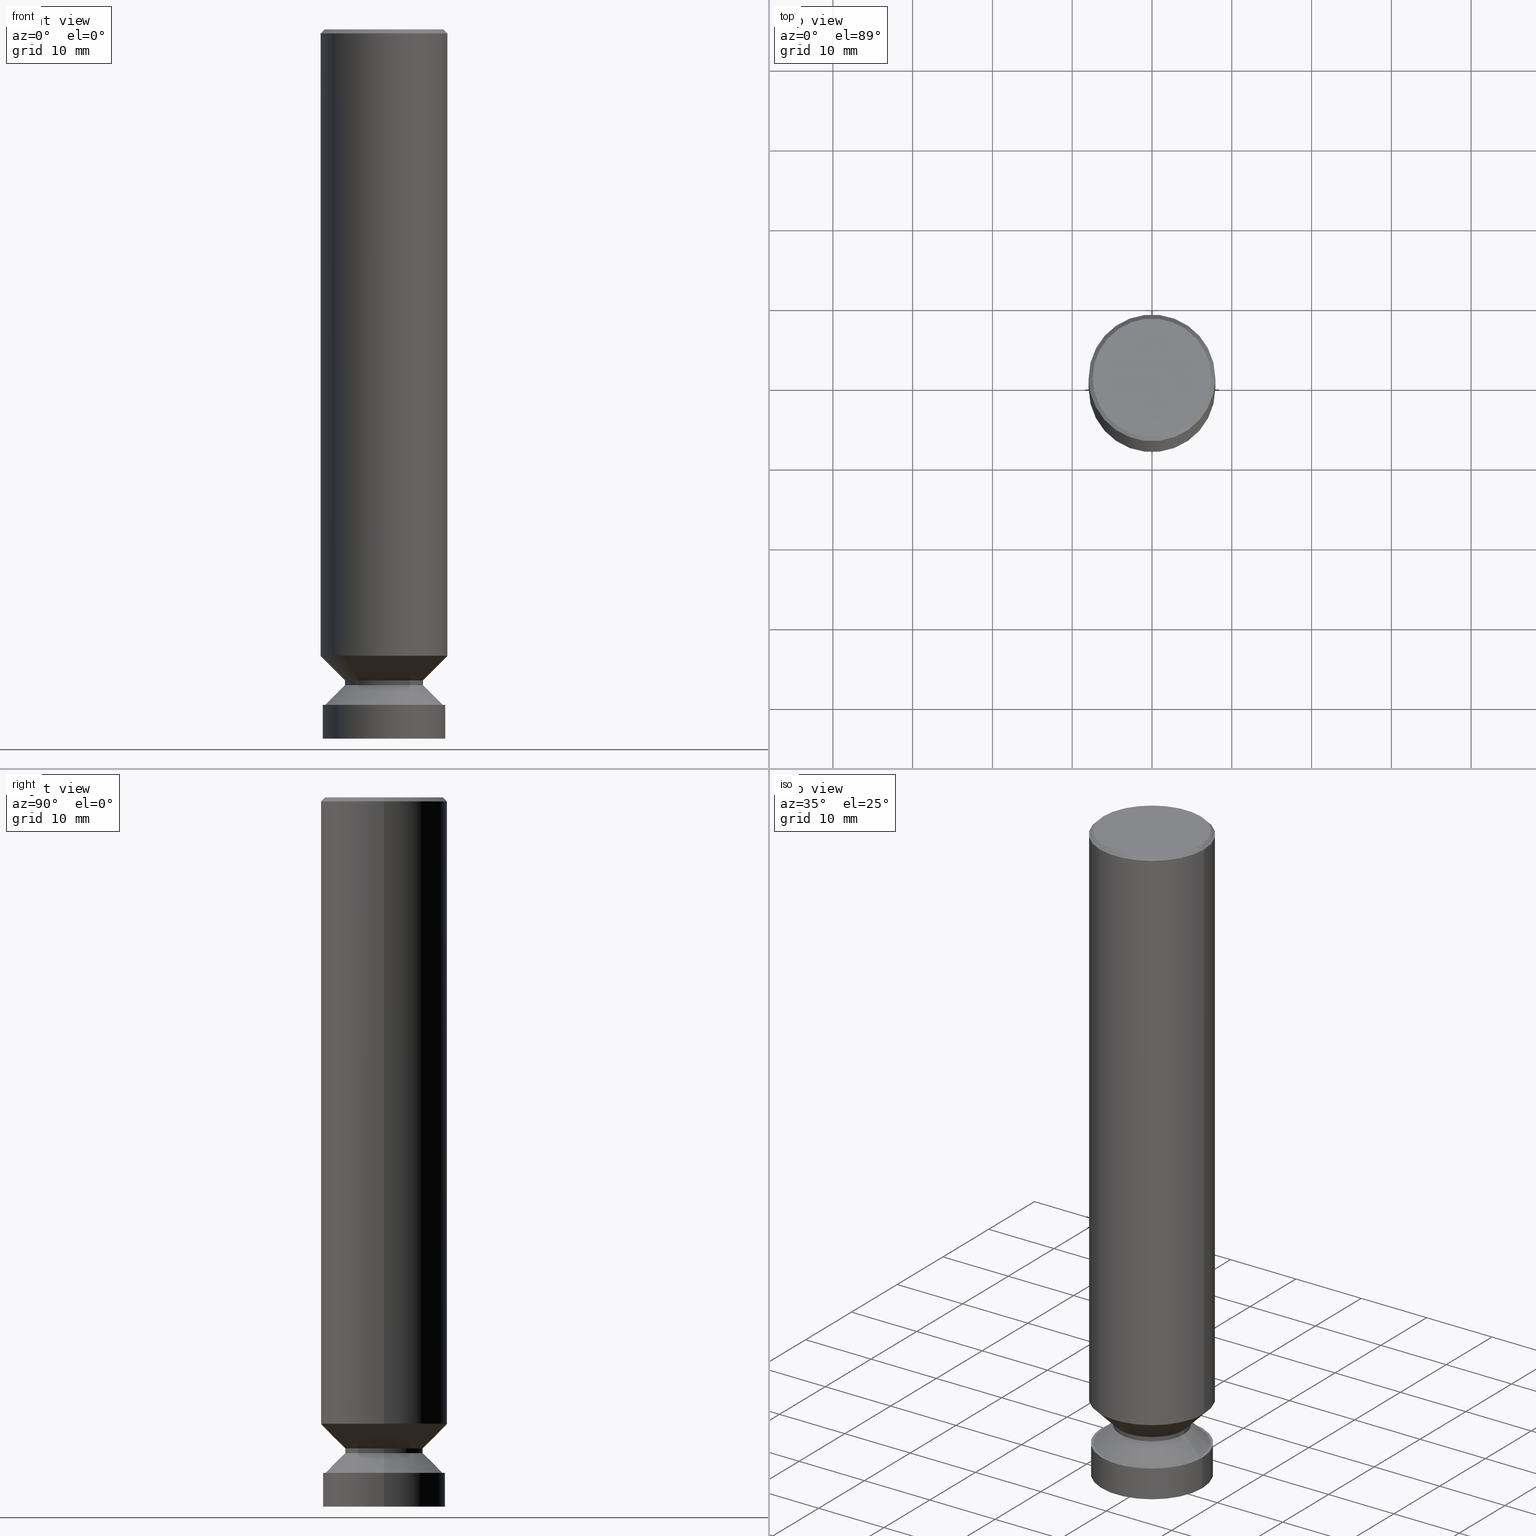
[diagram: canonical four-view strip — front | top / right | iso, engineering-drawing reading convention]
A machine part, canonical four-view strip (front | top / right | iso — engineering-drawing reading convention). The complete STEP part file that produces these views, byte-faithful:
ISO-10303-21;
HEADER;
FILE_DESCRIPTION (( 'STEP AP214' ),
    '1' );
FILE_NAME ('34762.STEP',
    '2023-05-05T20:02:58',
    ( '' ),
    ( '' ),
    'SwSTEP 2.0',
    'SolidWorks 2022',
    '' );
FILE_SCHEMA (( 'AUTOMOTIVE_DESIGN' ));
ENDSEC;

DATA;
#1 = DIRECTION ( 'NONE',  ( 0.000000000000000000, 0.000000000000000000, 1.000000000000000000 ) ) ;
#2 = ADVANCED_FACE ( 'NONE', ( #811 ), #120, .F. ) ;
#3 = SURFACE_SIDE_STYLE ('',( #755 ) ) ;
#4 = CIRCLE ( 'NONE', #361, 0.3025000000000004352 ) ;
#5 = AXIS2_PLACEMENT_3D ( 'NONE', #15, #448, #509 ) ;
#6 = CLOSED_SHELL ( 'NONE', ( #537, #118, #358, #614, #375, #87, #728, #2 ) ) ;
#7 = DIRECTION ( 'NONE',  ( 2.445468806185136597E-29, -3.491481338843145583E-15, -1.000000000000000000 ) ) ;
#8 =( NAMED_UNIT ( * ) SI_UNIT ( $, .STERADIAN. ) SOLID_ANGLE_UNIT ( ) );
#9 =( NAMED_UNIT ( * ) SI_UNIT ( $, .STERADIAN. ) SOLID_ANGLE_UNIT ( ) );
#10 =( GEOMETRIC_REPRESENTATION_CONTEXT ( 3 ) GLOBAL_UNCERTAINTY_ASSIGNED_CONTEXT ( ( #487 ) ) GLOBAL_UNIT_ASSIGNED_CONTEXT ( ( #233, #416, #476 ) ) REPRESENTATION_CONTEXT ( 'NONE', 'WORKASPACE' ) );
#11 = DIRECTION ( 'NONE',  ( 2.438088387897960049E-29, -3.491481338843145188E-15, -1.000000000000000000 ) ) ;
#12 = CARTESIAN_POINT ( 'NONE',  ( 7.855333339314627254E-29, -1.121533412948922282E-14, -3.212199362120970125 ) ) ;
#13 = DIMENSIONAL_EXPONENTS ( 1.000000000000000000, 0.000000000000000000, 0.000000000000000000, 0.000000000000000000, 0.000000000000000000, 0.000000000000000000, 0.000000000000000000 ) ;
#14 = AXIS2_PLACEMENT_3D ( 'NONE', #396, #45, #658 ) ;
#15 = CARTESIAN_POINT ( 'NONE',  ( 7.561265715370891456E-29, -1.079548349849337449E-14, -3.091949362120981704 ) ) ;
#16 = VERTEX_POINT ( 'NONE', #111 ) ;
#17 = CIRCLE ( 'NONE', #173, 0.2895506378790078106 ) ;
#18 = UNCERTAINTY_MEASURE_WITH_UNIT (LENGTH_MEASURE( 1.000000000000000082E-05 ), #819, 'distance_accuracy_value', 'NONE');
#19 = CARTESIAN_POINT ( 'NONE',  ( 7.561265715370891456E-29, -1.079548349849337449E-14, -3.091949362120981704 ) ) ;
#20 = ORIENTED_EDGE ( 'NONE', *, *, #605, .F. ) ;
#21 = DIRECTION ( 'NONE',  ( 1.000000000000000000, -6.982962677686265922E-15, 4.876176775795935232E-29 ) ) ;
#22 = DIMENSIONAL_EXPONENTS ( 1.000000000000000000, 0.000000000000000000, 0.000000000000000000, 0.000000000000000000, 0.000000000000000000, 0.000000000000000000, 0.000000000000000000 ) ;
#23 =( NAMED_UNIT ( * ) PLANE_ANGLE_UNIT ( ) SI_UNIT ( $, .RADIAN. ) );
#24 = ADVANCED_FACE ( 'NONE', ( #49 ), #745, .T. ) ;
#25 = LINE ( 'NONE', #339, #738 ) ;
#26 = VERTEX_POINT ( 'NONE', #270 ) ;
#27 = SURFACE_STYLE_USAGE ( .BOTH. , #709 ) ;
#28 =( GEOMETRIC_REPRESENTATION_CONTEXT ( 3 ) GLOBAL_UNCERTAINTY_ASSIGNED_CONTEXT ( ( #257 ) ) GLOBAL_UNIT_ASSIGNED_CONTEXT ( ( #183, #732, #821 ) ) REPRESENTATION_CONTEXT ( 'NONE', 'WORKASPACE' ) );
#29 = DIRECTION ( 'NONE',  ( 1.000000000000000000, -6.982962677686265133E-15, 0.000000000000000000 ) ) ;
#30 = DIMENSIONAL_EXPONENTS ( 1.000000000000000000, 0.000000000000000000, 0.000000000000000000, 0.000000000000000000, 0.000000000000000000, 0.000000000000000000, 0.000000000000000000 ) ;
#31 =( GEOMETRIC_REPRESENTATION_CONTEXT ( 3 ) GLOBAL_UNCERTAINTY_ASSIGNED_CONTEXT ( ( #552 ) ) GLOBAL_UNIT_ASSIGNED_CONTEXT ( ( #377, #387, #9 ) ) REPRESENTATION_CONTEXT ( 'NONE', 'WORKASPACE' ) );
#32 = ORIENTED_EDGE ( 'NONE', *, *, #511, .T. ) ;
#33 = DIMENSIONAL_EXPONENTS ( 1.000000000000000000, 0.000000000000000000, 0.000000000000000000, 0.000000000000000000, 0.000000000000000000, 0.000000000000000000, 0.000000000000000000 ) ;
#34 = CARTESIAN_POINT ( 'NONE',  ( -0.3025000000000004352, -9.779254218483265549E-15, -3.499999999999980016 ) ) ;
#35 = ORIENTED_EDGE ( 'NONE', *, *, #439, .T. ) ;
#36 = FACE_OUTER_BOUND ( 'NONE', #348, .T. ) ;
#37 = CARTESIAN_POINT ( 'NONE',  ( -0.2895506378790078106, -9.615186004754840058E-15, -3.332999999999999741 ) ) ;
#38 = ORIENTED_EDGE ( 'NONE', *, *, #754, .F. ) ;
#39 = CARTESIAN_POINT ( 'NONE',  ( 0.000000000000000000, 0.000000000000000000, 0.000000000000000000 ) ) ;
#40 = DIMENSIONAL_EXPONENTS ( 1.000000000000000000, 0.000000000000000000, 0.000000000000000000, 0.000000000000000000, 0.000000000000000000, 0.000000000000000000, 0.000000000000000000 ) ;
#41 = STYLED_ITEM ( 'NONE', ( #438 ), #397 ) ;
#42 = PRESENTATION_LAYER_ASSIGNMENT (  '', '', ( #79 ) ) ;
#43 = CONICAL_SURFACE ( 'NONE', #245, 450.0020591642964405, 1.483529864195269665 ) ;
#44 = VERTEX_POINT ( 'NONE', #452 ) ;
#45 = DIRECTION ( 'NONE',  ( -2.445468806185136597E-29, 3.491481338843145583E-15, 1.000000000000000000 ) ) ;
#46 = VERTEX_POINT ( 'NONE', #212 ) ;
#47 = EDGE_CURVE ( 'NONE', #477, #279, #783, .T. ) ;
#48 = DIRECTION ( 'NONE',  ( 2.445468806185136597E-29, -3.491481338843145583E-15, -1.000000000000000000 ) ) ;
#49 = FACE_OUTER_BOUND ( 'NONE', #736, .T. ) ;
#50 = FILL_AREA_STYLE ('',( #798 ) ) ;
#51 = SURFACE_STYLE_FILL_AREA ( #751 ) ;
#52 = LENGTH_MEASURE_WITH_UNIT ( LENGTH_MEASURE( 0.02539999999999999897 ), #114 );
#53 = ORIENTED_EDGE ( 'NONE', *, *, #89, .F. ) ;
#54 = STYLED_ITEM ( 'NONE', ( #76 ), #495 ) ;
#55 = APPLICATION_PROTOCOL_DEFINITION ( 'draft international standard', 'automotive_design', 1998, #123 ) ;
#56 = EDGE_LOOP ( 'NONE', ( #399, #414, #221, #661 ) ) ;
#57 = UNCERTAINTY_MEASURE_WITH_UNIT (LENGTH_MEASURE( 1.000000000000000082E-05 ), #324, 'distance_accuracy_value', 'NONE');
#58 = DIRECTION ( 'NONE',  ( 1.000000000000000000, -6.982962677686265133E-15, 0.000000000000000000 ) ) ;
#59 = SURFACE_STYLE_USAGE ( .BOTH. , #62 ) ;
#60 = DIRECTION ( 'NONE',  ( 1.000000000000000000, 0.000000000000000000, 0.000000000000000000 ) ) ;
#61 = DIRECTION ( 'NONE',  ( -2.445468806185136597E-29, 3.491481338843145583E-15, 1.000000000000000000 ) ) ;
#62 = SURFACE_SIDE_STYLE ('',( #51 ) ) ;
#63 =( NAMED_UNIT ( * ) SI_UNIT ( $, .STERADIAN. ) SOLID_ANGLE_UNIT ( ) );
#64 = DIRECTION ( 'NONE',  ( -2.445468806185136597E-29, 3.491481338843145583E-15, 1.000000000000000000 ) ) ;
#65 = SURFACE_STYLE_USAGE ( .BOTH. , #744 ) ;
#66 = CARTESIAN_POINT ( 'NONE',  ( 7.912801856260040491E-29, -1.129738394095212894E-14, -3.235699362120996181 ) ) ;
#67 = DIRECTION ( 'NONE',  ( 1.000000000000000000, -6.982962677686265922E-15, 4.876176775795935232E-29 ) ) ;
#68 = ADVANCED_FACE ( 'NONE', ( #785 ), #335, .T. ) ;
#69 =( CONVERSION_BASED_UNIT ( 'INCH', #677 ) LENGTH_UNIT ( ) NAMED_UNIT ( #40 ) );
#70 = MECHANICAL_DESIGN_GEOMETRIC_PRESENTATION_REPRESENTATION (  '', ( #604 ), #735 ) ;
#71 = FACE_OUTER_BOUND ( 'NONE', #729, .T. ) ;
#72 = SURFACE_STYLE_FILL_AREA ( #512 ) ;
#73 = CARTESIAN_POINT ( 'NONE',  ( -0.3025000000000002132, 2.149391775674304577E-15, -1.487977864802109852E-29 ) ) ;
#74 = PRESENTATION_LAYER_ASSIGNMENT (  '', '', ( #653 ) ) ;
#75 = SURFACE_STYLE_USAGE ( .BOTH. , #321 ) ;
#76 = PRESENTATION_STYLE_ASSIGNMENT (( #769 ) ) ;
#77 = FILL_AREA_STYLE_COLOUR ( '', #428 ) ;
#78 = CONICAL_SURFACE ( 'NONE', #786, 0.1922500000000000042, 0.7853981633974964627 ) ;
#79 = STYLED_ITEM ( 'NONE', ( #314 ), #559 ) ;
#80 = SURFACE_STYLE_USAGE ( .BOTH. , #213 ) ;
#81 = PRESENTATION_STYLE_ASSIGNMENT (( #380 ) ) ;
#82 =( CONVERSION_BASED_UNIT ( 'INCH', #107 ) LENGTH_UNIT ( ) NAMED_UNIT ( #30 ) );
#83 = PRESENTATION_LAYER_ASSIGNMENT (  '', '', ( #809 ) ) ;
#84 = DIRECTION ( 'NONE',  ( 1.000000000000000000, -6.982962677686265133E-15, 0.000000000000000000 ) ) ;
#85 = FILL_AREA_STYLE_COLOUR ( '', #805 ) ;
#86 = VERTEX_POINT ( 'NONE', #460 ) ;
#87 = ADVANCED_FACE ( 'NONE', ( #36 ), #812, .T. ) ;
#88 =( NAMED_UNIT ( * ) SI_UNIT ( $, .STERADIAN. ) SOLID_ANGLE_UNIT ( ) );
#89 = EDGE_CURVE ( 'NONE', #663, #400, #90, .T. ) ;
#90 = CIRCLE ( 'NONE', #14, 0.3115000000000003322 ) ;
#91 = DIRECTION ( 'NONE',  ( -1.000000000000000000, 6.982962677686265922E-15, -4.876176775795935793E-29 ) ) ;
#92 = DIRECTION ( 'NONE',  ( 1.000000000000000000, -6.982962677686265922E-15, 4.876176775795935793E-29 ) ) ;
#93 = VERTEX_POINT ( 'NONE', #730 ) ;
#94 =( NAMED_UNIT ( * ) SI_UNIT ( $, .STERADIAN. ) SOLID_ANGLE_UNIT ( ) );
#95 = AXIS2_PLACEMENT_3D ( 'NONE', #192, #252, #421 ) ;
#96 = VECTOR ( 'NONE', #647, 39.37007874015748143 ) ;
#97 = DIRECTION ( 'NONE',  ( -2.445468806185136597E-29, 3.491481338843145583E-15, 1.000000000000000000 ) ) ;
#98 =( GEOMETRIC_REPRESENTATION_CONTEXT ( 3 ) GLOBAL_UNCERTAINTY_ASSIGNED_CONTEXT ( ( #394 ) ) GLOBAL_UNIT_ASSIGNED_CONTEXT ( ( #571, #697, #8 ) ) REPRESENTATION_CONTEXT ( 'NONE', 'WORKASPACE' ) );
#99 = CARTESIAN_POINT ( 'NONE',  ( -0.3125000000000000000, 2.112346210000095049E-15, -0.02000000000000009756 ) ) ;
#100 = DIMENSIONAL_EXPONENTS ( 1.000000000000000000, 0.000000000000000000, 0.000000000000000000, 0.000000000000000000, 0.000000000000000000, 0.000000000000000000, 0.000000000000000000 ) ;
#101 = ORIENTED_EDGE ( 'NONE', *, *, #666, .T. ) ;
#102 = FILL_AREA_STYLE_COLOUR ( '', #419 ) ;
#103 = EDGE_CURVE ( 'NONE', #16, #790, #575, .T. ) ;
#104 = AXIS2_PLACEMENT_3D ( 'NONE', #650, #523, #352 ) ;
#105 =( NAMED_UNIT ( * ) PLANE_ANGLE_UNIT ( ) SI_UNIT ( $, .RADIAN. ) );
#106 = ORIENTED_EDGE ( 'NONE', *, *, #686, .T. ) ;
#107 = LENGTH_MEASURE_WITH_UNIT ( LENGTH_MEASURE( 0.02539999999999999897 ), #519 );
#108 = CARTESIAN_POINT ( 'NONE',  ( 1.047860920863443370E-27, -1.496067683073414526E-13, -42.84908146091126468 ) ) ;
#109 = VERTEX_POINT ( 'NONE', #600 ) ;
#110 = SURFACE_STYLE_FILL_AREA ( #50 ) ;
#111 = CARTESIAN_POINT ( 'NONE',  ( 0.2895506378790078106, -1.362356887378660573E-14, -3.332999999999999741 ) ) ;
#112 = CARTESIAN_POINT ( 'NONE',  ( 1.047860920863443370E-27, -1.496067683073414526E-13, -42.84908146091126468 ) ) ;
#113 = MECHANICAL_DESIGN_GEOMETRIC_PRESENTATION_REPRESENTATION (  '', ( #261 ), #217 ) ;
#114 =( LENGTH_UNIT ( ) NAMED_UNIT ( * ) SI_UNIT ( $, .METRE. ) );
#115 = FILL_AREA_STYLE_COLOUR ( '', #547 ) ;
#116 = DIRECTION ( 'NONE',  ( 1.000000000000000000, -6.982962677686266711E-15, 4.876176775795935232E-29 ) ) ;
#117 = DIRECTION ( 'NONE',  ( -2.445468806185136597E-29, 3.491481338843145583E-15, 1.000000000000000000 ) ) ;
#118 = ADVANCED_FACE ( 'NONE', ( #664 ), #236, .T. ) ;
#119 = DIRECTION ( 'NONE',  ( -1.000000000000000000, 6.982962677686266711E-15, 0.000000000000000000 ) ) ;
#120 = PLANE ( 'NONE',  #568 ) ;
#121 = UNCERTAINTY_MEASURE_WITH_UNIT (LENGTH_MEASURE( 1.000000000000000082E-05 ), #470, 'distance_accuracy_value', 'NONE');
#122 = DIRECTION ( 'NONE',  ( 1.000000000000000000, -6.982962677686265133E-15, 0.000000000000000000 ) ) ;
#123 = APPLICATION_CONTEXT ( 'automotive_design' ) ;
#124 = AXIS2_PLACEMENT_3D ( 'NONE', #684, #61, #203 ) ;
#125 = MECHANICAL_DESIGN_GEOMETRIC_PRESENTATION_REPRESENTATION (  '', ( #79 ), #717 ) ;
#126 = CARTESIAN_POINT ( 'NONE',  ( 2.042516583223232540E-15, 0.2924999999999999267, -1.023480010969099269E-15 ) ) ;
#127 = CIRCLE ( 'NONE', #649, 0.3125000000000003331 ) ;
#128 = FACE_OUTER_BOUND ( 'NONE', #526, .T. ) ;
#129 = CLOSED_SHELL ( 'NONE', ( #158, #495, #397, #559, #520, #431, #68, #165, #24, #662, #315, #491, #800 ) ) ;
#130 = FILL_AREA_STYLE ('',( #371 ) ) ;
#131 = DIRECTION ( 'NONE',  ( 1.000000000000000000, -6.982962677686263555E-15, 0.000000000000000000 ) ) ;
#132 = CARTESIAN_POINT ( 'NONE',  ( -0.2924999999999999267, 2.077431396611663794E-15, -4.443438714973144205E-18 ) ) ;
#133 =( LENGTH_UNIT ( ) NAMED_UNIT ( * ) SI_UNIT ( $, .METRE. ) );
#134 = FILL_AREA_STYLE_COLOUR ( '', #188 ) ;
#135 = STYLED_ITEM ( 'NONE', ( #354 ), #158 ) ;
#136 = CIRCLE ( 'NONE', #685, 0.1922499999999864595 ) ;
#137 = SHAPE_DEFINITION_REPRESENTATION ( #676, #231 ) ;
#138 = DIRECTION ( 'NONE',  ( -1.000000000000000000, 6.982962677686266711E-15, 0.000000000000000000 ) ) ;
#139 = EDGE_CURVE ( 'NONE', #663, #46, #175, .T. ) ;
#140 = FILL_AREA_STYLE_COLOUR ( '', #437 ) ;
#141 = LINE ( 'NONE', #205, #385 ) ;
#142 =( GEOMETRIC_REPRESENTATION_CONTEXT ( 3 ) GLOBAL_UNCERTAINTY_ASSIGNED_CONTEXT ( ( #444 ) ) GLOBAL_UNIT_ASSIGNED_CONTEXT ( ( #771, #23, #569 ) ) REPRESENTATION_CONTEXT ( 'NONE', 'WORKASPACE' ) );
#143 = AXIS2_PLACEMENT_3D ( 'NONE', #151, #630, #761 ) ;
#144 = LENGTH_MEASURE_WITH_UNIT ( LENGTH_MEASURE( 0.02539999999999999897 ), #430 );
#145 = PRESENTATION_STYLE_ASSIGNMENT (( #703 ) ) ;
#146 = PRESENTATION_LAYER_ASSIGNMENT (  '', '', ( #604 ) ) ;
#147 = PRESENTATION_STYLE_ASSIGNMENT (( #75 ) ) ;
#148 = DIRECTION ( 'NONE',  ( 0.7071067811865815456, -2.468850131082613626E-15, 0.7071067811865134889 ) ) ;
#149 = PRESENTATION_LAYER_ASSIGNMENT (  '', '', ( #135 ) ) ;
#150 = CARTESIAN_POINT ( 'NONE',  ( -0.1922500000000000042, -9.849315719990429988E-15, -3.212199362120970125 ) ) ;
#151 = CARTESIAN_POINT ( 'NONE',  ( 2.182175836777033683E-15, 0.3124999999999892308, -3.091949362120983036 ) ) ;
#152 = DIRECTION ( 'NONE',  ( -2.445468806185136877E-29, 3.491481338843145188E-15, 1.000000000000000000 ) ) ;
#153 = ORIENTED_EDGE ( 'NONE', *, *, #439, .F. ) ;
#154 = EDGE_CURVE ( 'NONE', #279, #477, #434, .T. ) ;
#155 =( CONVERSION_BASED_UNIT ( 'INCH', #204 ) LENGTH_UNIT ( ) NAMED_UNIT ( #344 ) );
#156 = CARTESIAN_POINT ( 'NONE',  ( 0.2400000000000006295, -1.386670420541611103E-14, -3.499999999999980016 ) ) ;
#157 =( NAMED_UNIT ( * ) PLANE_ANGLE_UNIT ( ) SI_UNIT ( $, .RADIAN. ) );
#158 = ADVANCED_FACE ( 'NONE', ( #411 ), #43, .F. ) ;
#159 = VECTOR ( 'NONE', #795, 39.37007874015748854 ) ;
#160 = VERTEX_POINT ( 'NONE', #478 ) ;
#161 = CARTESIAN_POINT ( 'NONE',  ( -0.3125000000000000000, 2.112346210000095049E-15, -0.02000000000000009756 ) ) ;
#162 = EDGE_CURVE ( 'NONE', #722, #606, #351, .T. ) ;
#163 = EDGE_LOOP ( 'NONE', ( #356, #106, #269, #670 ) ) ;
#164 = SURFACE_STYLE_USAGE ( .BOTH. , #275 ) ;
#165 = ADVANCED_FACE ( 'NONE', ( #408, #229 ), #640, .F. ) ;
#166 = COLOUR_RGB ( '',1.000000000000000000, 1.000000000000000000, 0.000000000000000000 ) ;
#167 = CIRCLE ( 'NONE', #544, 0.2400000000000004352 ) ;
#168 = ORIENTED_EDGE ( 'NONE', *, *, #689, .F. ) ;
#169 = LENGTH_MEASURE_WITH_UNIT ( LENGTH_MEASURE( 0.02539999999999999897 ), #720 );
#170 = ORIENTED_EDGE ( 'NONE', *, *, #297, .T. ) ;
#171 = CARTESIAN_POINT ( 'NONE',  ( 8.150747531015059748E-29, -1.163710730236420348E-14, -3.332999999999999741 ) ) ;
#172 = PLANE ( 'NONE',  #655 ) ;
#173 = AXIS2_PLACEMENT_3D ( 'NONE', #425, #815, #319 ) ;
#174 = ORIENTED_EDGE ( 'NONE', *, *, #645, .F. ) ;
#175 = LINE ( 'NONE', #531, #373 ) ;
#176 = EDGE_CURVE ( 'NONE', #289, #722, #506, .T. ) ;
#177 = ORIENTED_EDGE ( 'NONE', *, *, #316, .F. ) ;
#178 = EDGE_CURVE ( 'NONE', #400, #663, #543, .T. ) ;
#179 = AXIS2_PLACEMENT_3D ( 'NONE', #332, #692, #497 ) ;
#180 = SURFACE_SIDE_STYLE ('',( #513 ) ) ;
#181 = EDGE_LOOP ( 'NONE', ( #733, #774, #716, #782 ) ) ;
#182 = DIRECTION ( 'NONE',  ( 1.000000000000000000, -6.982962677686267499E-15, 0.000000000000000000 ) ) ;
#183 =( CONVERSION_BASED_UNIT ( 'INCH', #741 ) LENGTH_UNIT ( ) NAMED_UNIT ( #781 ) );
#184 = VERTEX_POINT ( 'NONE', #337 ) ;
#185 = CARTESIAN_POINT ( 'NONE',  ( 0.1922500000000000042, -1.255780870427440876E-14, -3.212199362120970125 ) ) ;
#186 = CARTESIAN_POINT ( 'NONE',  ( 0.000000000000000000, 0.000000000000000000, 0.000000000000000000 ) ) ;
#187 = MECHANICAL_DESIGN_GEOMETRIC_PRESENTATION_REPRESENTATION (  '', ( #41 ), #541 ) ;
#188 = COLOUR_RGB ( '',1.000000000000000000, 1.000000000000000000, 0.000000000000000000 ) ;
#189 = AXIS2_PLACEMENT_3D ( 'NONE', #171, #737, #182 ) ;
#190 = LINE ( 'NONE', #638, #464 ) ;
#191 = DIRECTION ( 'NONE',  ( 1.000000000000000000, -6.982962677686268288E-15, 0.000000000000000000 ) ) ;
#192 = CARTESIAN_POINT ( 'NONE',  ( 0.000000000000000000, 0.000000000000000000, 0.000000000000000000 ) ) ;
#193 = DIRECTION ( 'NONE',  ( -2.445468806185136597E-29, 3.491481338843145583E-15, 1.000000000000000000 ) ) ;
#194 = EDGE_CURVE ( 'NONE', #46, #707, #516, .T. ) ;
#195 = DIRECTION ( 'NONE',  ( -0.7071067811866130759, 2.468850131082943764E-15, -0.7071067811864819586 ) ) ;
#196 = SURFACE_STYLE_USAGE ( .BOTH. , #3 ) ;
#197 = SURFACE_STYLE_USAGE ( .BOTH. , #757 ) ;
#198 = UNCERTAINTY_MEASURE_WITH_UNIT (LENGTH_MEASURE( 1.000000000000000082E-05 ), #277, 'distance_accuracy_value', 'NONE');
#199 = PLANE ( 'NONE',  #508 ) ;
#200 = DIRECTION ( 'NONE',  ( -2.445468806185136877E-29, 3.491481338843145188E-15, 1.000000000000000000 ) ) ;
#201 = VECTOR ( 'NONE', #195, 39.37007874015748143 ) ;
#202 = STYLED_ITEM ( 'NONE', ( #810 ), #520 ) ;
#203 = DIRECTION ( 'NONE',  ( 1.000000000000000000, -6.982962677686263555E-15, 0.000000000000000000 ) ) ;
#204 = LENGTH_MEASURE_WITH_UNIT ( LENGTH_MEASURE( 0.02539999999999999897 ), #454 );
#205 = CARTESIAN_POINT ( 'NONE',  ( 0.1922500000000000042, -1.255780870427440876E-14, -3.212199362120970125 ) ) ;
#206 = COLOUR_RGB ( '',1.000000000000000000, 1.000000000000000000, 0.000000000000000000 ) ;
#207 = LINE ( 'NONE', #765, #674 ) ;
#208 = EDGE_CURVE ( 'NONE', #86, #481, #500, .T. ) ;
#209 = PRESENTATION_LAYER_ASSIGNMENT (  '', '', ( #799 ) ) ;
#210 = CARTESIAN_POINT ( 'NONE',  ( -0.3125000000000001665, 2.220446049250314264E-15, -1.537167215704658792E-29 ) ) ;
#211 = LINE ( 'NONE', #708, #318 ) ;
#212 = CARTESIAN_POINT ( 'NONE',  ( -0.3125000000000003331, -3.210464772715377996E-15, -3.090949362120981370 ) ) ;
#213 = SURFACE_SIDE_STYLE ('',( #218 ) ) ;
#214 = LENGTH_MEASURE_WITH_UNIT ( LENGTH_MEASURE( 0.02539999999999999897 ), #576 );
#215 = SURFACE_SIDE_STYLE ('',( #712 ) ) ;
#216 = ORIENTED_EDGE ( 'NONE', *, *, #522, .F. ) ;
#217 =( GEOMETRIC_REPRESENTATION_CONTEXT ( 3 ) GLOBAL_UNCERTAINTY_ASSIGNED_CONTEXT ( ( #539 ) ) GLOBAL_UNIT_ASSIGNED_CONTEXT ( ( #457, #532, #723 ) ) REPRESENTATION_CONTEXT ( 'NONE', 'WORKASPACE' ) );
#218 = SURFACE_STYLE_FILL_AREA ( #398 ) ;
#219 = EDGE_CURVE ( 'NONE', #279, #93, #587, .T. ) ;
#220 = EDGE_LOOP ( 'NONE', ( #788, #285, #796, #510 ) ) ;
#221 = ORIENTED_EDGE ( 'NONE', *, *, #253, .F. ) ;
#222 = FILL_AREA_STYLE ('',( #115 ) ) ;
#223 =( GEOMETRIC_REPRESENTATION_CONTEXT ( 3 ) GLOBAL_UNCERTAINTY_ASSIGNED_CONTEXT ( ( #57 ) ) GLOBAL_UNIT_ASSIGNED_CONTEXT ( ( #324, #622, #63 ) ) REPRESENTATION_CONTEXT ( 'NONE', 'WORKASPACE' ) );
#224 = LENGTH_MEASURE_WITH_UNIT ( LENGTH_MEASURE( 0.02539999999999999897 ), #644 );
#225 = ORIENTED_EDGE ( 'NONE', *, *, #734, .F. ) ;
#226 = LENGTH_MEASURE_WITH_UNIT ( LENGTH_MEASURE( 0.02539999999999999897 ), #794 );
#227 =( LENGTH_UNIT ( ) NAMED_UNIT ( * ) SI_UNIT ( $, .METRE. ) );
#228 = ORIENTED_EDGE ( 'NONE', *, *, #585, .T. ) ;
#229 = FACE_OUTER_BOUND ( 'NONE', #719, .T. ) ;
#230 = SURFACE_SIDE_STYLE ('',( #110 ) ) ;
#231 = ADVANCED_BREP_SHAPE_REPRESENTATION ( '34762', ( #693, #675, #381 ), #28 ) ;
#232 = CIRCLE ( 'NONE', #298, 0.3125000000000000000 ) ;
#233 =( CONVERSION_BASED_UNIT ( 'INCH', #52 ) LENGTH_UNIT ( ) NAMED_UNIT ( #281 ) );
#234 = MECHANICAL_DESIGN_GEOMETRIC_PRESENTATION_REPRESENTATION (  '', ( #54 ), #98 ) ;
#235 = ORIENTED_EDGE ( 'NONE', *, *, #176, .F. ) ;
#236 = CYLINDRICAL_SURFACE ( 'NONE', #536, 0.3125000000000001665 ) ;
#237 = PRESENTATION_STYLE_ASSIGNMENT (( #413 ) ) ;
#238 = ORIENTED_EDGE ( 'NONE', *, *, #585, .F. ) ;
#239 = DIRECTION ( 'NONE',  ( 1.000000000000000000, -6.982962677686262766E-15, 0.000000000000000000 ) ) ;
#240 = FILL_AREA_STYLE ('',( #134 ) ) ;
#241 = DIRECTION ( 'NONE',  ( 2.438088387897960049E-29, -3.491481338843145188E-15, -1.000000000000000000 ) ) ;
#242 = DIRECTION ( 'NONE',  ( -2.438088387897960049E-29, 3.491481338843145188E-15, 1.000000000000000000 ) ) ;
#243 = AXIS2_PLACEMENT_3D ( 'NONE', #247, #7, #138 ) ;
#244 = FILL_AREA_STYLE ('',( #429 ) ) ;
#245 = AXIS2_PLACEMENT_3D ( 'NONE', #112, #607, #802 ) ;
#246 = CARTESIAN_POINT ( 'NONE',  ( 4.890937612370297681E-31, -6.982962677686324889E-17, -0.02000000000000009756 ) ) ;
#247 = CARTESIAN_POINT ( 'NONE',  ( 4.890937612370297681E-31, -6.982962677686324889E-17, -0.02000000000000009756 ) ) ;
#248 =( NAMED_UNIT ( * ) SI_UNIT ( $, .STERADIAN. ) SOLID_ANGLE_UNIT ( ) );
#249 = FILL_AREA_STYLE_COLOUR ( '', #613 ) ;
#250 = SURFACE_SIDE_STYLE ('',( #694 ) ) ;
#251 = CARTESIAN_POINT ( 'NONE',  ( 8.559140821647929884E-29, -1.222018468595094150E-14, -3.499999999999980016 ) ) ;
#252 = DIRECTION ( 'NONE',  ( -2.445468806185136597E-29, 3.491481338843145583E-15, 1.000000000000000000 ) ) ;
#253 = EDGE_CURVE ( 'NONE', #44, #707, #232, .T. ) ;
#254 = FACE_OUTER_BOUND ( 'NONE', #609, .T. ) ;
#255 = APPLICATION_PROTOCOL_DEFINITION ( 'draft international standard', 'automotive_design', 1998, #447 ) ;
#256 = CIRCLE ( 'NONE', #566, 0.2924999999999999267 ) ;
#257 = UNCERTAINTY_MEASURE_WITH_UNIT (LENGTH_MEASURE( 1.000000000000000082E-05 ), #183, 'distance_accuracy_value', 'NONE');
#258 = AXIS2_PLACEMENT_3D ( 'NONE', #636, #11, #91 ) ;
#259 = DIRECTION ( 'NONE',  ( -2.445468806185136597E-29, 3.491481338843145583E-15, 1.000000000000000000 ) ) ;
#260 = LINE ( 'NONE', #441, #787 ) ;
#261 = STYLED_ITEM ( 'NONE', ( #436 ), #675 ) ;
#262 = LENGTH_MEASURE_WITH_UNIT ( LENGTH_MEASURE( 0.02539999999999999897 ), #714 );
#263 = CARTESIAN_POINT ( 'NONE',  ( 8.559140821647929884E-29, -1.222018468595094150E-14, -3.499999999999980016 ) ) ;
#264 = FILL_AREA_STYLE ('',( #328 ) ) ;
#265 = CARTESIAN_POINT ( 'NONE',  ( 8.150747531015059748E-29, -1.163710730236420348E-14, -3.332999999999999741 ) ) ;
#266 = AXIS2_PLACEMENT_3D ( 'NONE', #246, #64, #58 ) ;
#267 = DIRECTION ( 'NONE',  ( -0.7071067811865815456, 7.493145998870477222E-15, 0.7071067811865134889 ) ) ;
#268 = DIRECTION ( 'NONE',  ( -2.445468806185136597E-29, 3.491481338843145583E-15, 1.000000000000000000 ) ) ;
#269 = ORIENTED_EDGE ( 'NONE', *, *, #103, .T. ) ;
#270 = CARTESIAN_POINT ( 'NONE',  ( 8.507792630236588623E-29, -1.214687307729635313E-14, -3.479002720753780142 ) ) ;
#271 = EDGE_CURVE ( 'NONE', #184, #93, #401, .T. ) ;
#272 = CARTESIAN_POINT ( 'NONE',  ( 7.561265715370890335E-29, -1.079548349849337133E-14, -3.091949362120980815 ) ) ;
#273 = DIMENSIONAL_EXPONENTS ( 1.000000000000000000, 0.000000000000000000, 0.000000000000000000, 0.000000000000000000, 0.000000000000000000, 0.000000000000000000, 0.000000000000000000 ) ;
#274 = ORIENTED_EDGE ( 'NONE', *, *, #689, .T. ) ;
#275 = SURFACE_SIDE_STYLE ('',( #515 ) ) ;
#276 = AXIS2_PLACEMENT_3D ( 'NONE', #108, #48, #119 ) ;
#277 =( CONVERSION_BASED_UNIT ( 'INCH', #224 ) LENGTH_UNIT ( ) NAMED_UNIT ( #721 ) );
#278 = DIMENSIONAL_EXPONENTS ( 1.000000000000000000, 0.000000000000000000, 0.000000000000000000, 0.000000000000000000, 0.000000000000000000, 0.000000000000000000, 0.000000000000000000 ) ;
#279 = VERTEX_POINT ( 'NONE', #700 ) ;
#280 = CARTESIAN_POINT ( 'NONE',  ( 7.561265715370890335E-29, -1.079548349849337133E-14, -3.091949362120980815 ) ) ;
#281 = DIMENSIONAL_EXPONENTS ( 1.000000000000000000, 0.000000000000000000, 0.000000000000000000, 0.000000000000000000, 0.000000000000000000, 0.000000000000000000, 0.000000000000000000 ) ;
#282 = MECHANICAL_DESIGN_GEOMETRIC_PRESENTATION_REPRESENTATION (  '', ( #449 ), #699 ) ;
#283 =( GEOMETRIC_REPRESENTATION_CONTEXT ( 3 ) GLOBAL_UNCERTAINTY_ASSIGNED_CONTEXT ( ( #672 ) ) GLOBAL_UNIT_ASSIGNED_CONTEXT ( ( #82, #329, #94 ) ) REPRESENTATION_CONTEXT ( 'NONE', 'WORKASPACE' ) );
#284 = CARTESIAN_POINT ( 'NONE',  ( 7.561265715370890335E-29, -1.079548349849337133E-14, -3.091949362120980815 ) ) ;
#285 = ORIENTED_EDGE ( 'NONE', *, *, #616, .T. ) ;
#286 = DIRECTION ( 'NONE',  ( 1.000000000000000000, -6.982962677686268288E-15, 0.000000000000000000 ) ) ;
#287 =( GEOMETRIC_REPRESENTATION_CONTEXT ( 3 ) GLOBAL_UNCERTAINTY_ASSIGNED_CONTEXT ( ( #121 ) ) GLOBAL_UNIT_ASSIGNED_CONTEXT ( ( #470, #726, #540 ) ) REPRESENTATION_CONTEXT ( 'NONE', 'WORKASPACE' ) );
#288 = FILL_AREA_STYLE_COLOUR ( '', #792 ) ;
#289 = VERTEX_POINT ( 'NONE', #818 ) ;
#290 = CARTESIAN_POINT ( 'NONE',  ( 7.855333339314627254E-29, -1.121533412948922282E-14, -3.212199362120970125 ) ) ;
#291 = EDGE_CURVE ( 'NONE', #606, #722, #466, .T. ) ;
#292 = ORIENTED_EDGE ( 'NONE', *, *, #316, .T. ) ;
#293 = CARTESIAN_POINT ( 'NONE',  ( 8.150747531015059748E-29, -1.163710730236420348E-14, -3.332999999999999741 ) ) ;
#294 = EDGE_LOOP ( 'NONE', ( #459, #53 ) ) ;
#295 = SURFACE_STYLE_USAGE ( .BOTH. , #230 ) ;
#296 = SURFACE_STYLE_FILL_AREA ( #240 ) ;
#297 = EDGE_CURVE ( 'NONE', #109, #790, #557, .T. ) ;
#298 = AXIS2_PLACEMENT_3D ( 'NONE', #330, #383, #29 ) ;
#299 = EDGE_CURVE ( 'NONE', #648, #46, #127, .T. ) ;
#300 = PRODUCT ( '34762', '34762', '', ( #498 ) ) ;
#301 = LINE ( 'NONE', #545, #159 ) ;
#302 = MECHANICAL_DESIGN_GEOMETRIC_PRESENTATION_REPRESENTATION (  '', ( #202 ), #468 ) ;
#303 = VERTEX_POINT ( 'NONE', #763 ) ;
#304 = FILL_AREA_STYLE_COLOUR ( '', #474 ) ;
#305 = PRESENTATION_LAYER_ASSIGNMENT (  '', '', ( #503 ) ) ;
#306 = ORIENTED_EDGE ( 'NONE', *, *, #669, .T. ) ;
#307 =( NAMED_UNIT ( * ) PLANE_ANGLE_UNIT ( ) SI_UNIT ( $, .RADIAN. ) );
#308 = DIRECTION ( 'NONE',  ( 1.000000000000000000, -6.982962677686266711E-15, 4.876067333457690598E-29 ) ) ;
#309 = UNCERTAINTY_MEASURE_WITH_UNIT (LENGTH_MEASURE( 1.000000000000000082E-05 ), #155, 'distance_accuracy_value', 'NONE');
#310 = FACE_OUTER_BOUND ( 'NONE', #807, .T. ) ;
#311 =( NAMED_UNIT ( * ) SI_UNIT ( $, .STERADIAN. ) SOLID_ANGLE_UNIT ( ) );
#312 = DIRECTION ( 'NONE',  ( -2.445468806185136877E-29, 3.491481338843145188E-15, 1.000000000000000000 ) ) ;
#313 = SURFACE_STYLE_FILL_AREA ( #687 ) ;
#314 = PRESENTATION_STYLE_ASSIGNMENT (( #65 ) ) ;
#315 = ADVANCED_FACE ( 'NONE', ( #71 ), #78, .T. ) ;
#316 = EDGE_CURVE ( 'NONE', #742, #289, #4, .T. ) ;
#317 = CYLINDRICAL_SURFACE ( 'NONE', #325, 0.3125000000000001665 ) ;
#318 = VECTOR ( 'NONE', #631, 39.37007874015748143 ) ;
#319 = DIRECTION ( 'NONE',  ( 1.000000000000000000, -6.982962677686268288E-15, 0.000000000000000000 ) ) ;
#320 =( LENGTH_UNIT ( ) NAMED_UNIT ( * ) SI_UNIT ( $, .METRE. ) );
#321 = SURFACE_SIDE_STYLE ('',( #433 ) ) ;
#322 = AXIS2_PLACEMENT_3D ( 'NONE', #265, #388, #770 ) ;
#323 = DIRECTION ( 'NONE',  ( -2.445468806185136877E-29, 3.491481338843145188E-15, 1.000000000000000000 ) ) ;
#324 =( CONVERSION_BASED_UNIT ( 'INCH', #372 ) LENGTH_UNIT ( ) NAMED_UNIT ( #100 ) );
#325 = AXIS2_PLACEMENT_3D ( 'NONE', #752, #259, #678 ) ;
#326 = EDGE_CURVE ( 'NONE', #160, #477, #760, .T. ) ;
#327 = AXIS2_PLACEMENT_3D ( 'NONE', #816, #117, #625 ) ;
#328 = FILL_AREA_STYLE_COLOUR ( '', #480 ) ;
#329 =( NAMED_UNIT ( * ) PLANE_ANGLE_UNIT ( ) SI_UNIT ( $, .RADIAN. ) );
#330 = CARTESIAN_POINT ( 'NONE',  ( 4.890937612370297681E-31, -6.982962677686324889E-17, -0.02000000000000009756 ) ) ;
#331 = SURFACE_SIDE_STYLE ('',( #72 ) ) ;
#332 = CARTESIAN_POINT ( 'NONE',  ( 8.559140821647929884E-29, -1.222018468595094150E-14, -3.499999999999980016 ) ) ;
#333 = EDGE_CURVE ( 'NONE', #303, #595, #384, .T. ) ;
#334 = ORIENTED_EDGE ( 'NONE', *, *, #573, .T. ) ;
#335 = CYLINDRICAL_SURFACE ( 'NONE', #743, 0.3025000000000002132 ) ;
#336 = AXIS2_PLACEMENT_3D ( 'NONE', #293, #418, #286 ) ;
#337 = CARTESIAN_POINT ( 'NONE',  ( 0.3125000000000000000, -1.297765933527033441E-14, -3.091949362120981704 ) ) ;
#338 = ORIENTED_EDGE ( 'NONE', *, *, #162, .F. ) ;
#339 = CARTESIAN_POINT ( 'NONE',  ( 0.2895506378790078106, -1.362356887378660573E-14, -3.332999999999999741 ) ) ;
#340 = ORIENTED_EDGE ( 'NONE', *, *, #194, .F. ) ;
#341 = AXIS2_PLACEMENT_3D ( 'NONE', #705, #97, #342 ) ;
#342 = DIRECTION ( 'NONE',  ( 1.000000000000000000, -6.982962677686266711E-15, 4.876067333457690598E-29 ) ) ;
#343 = ORIENTED_EDGE ( 'NONE', *, *, #754, .T. ) ;
#344 = DIMENSIONAL_EXPONENTS ( 1.000000000000000000, 0.000000000000000000, 0.000000000000000000, 0.000000000000000000, 0.000000000000000000, 0.000000000000000000, 0.000000000000000000 ) ;
#345 = CIRCLE ( 'NONE', #550, 0.1922499999999864595 ) ;
#346 = ORIENTED_EDGE ( 'NONE', *, *, #412, .T. ) ;
#347 = DIRECTION ( 'NONE',  ( -2.445468806185136597E-29, 3.491481338843145583E-15, 1.000000000000000000 ) ) ;
#348 = EDGE_LOOP ( 'NONE', ( #469, #646, #417, #38 ) ) ;
#349 = DIRECTION ( 'NONE',  ( -2.445468806185136597E-29, 3.491481338843145583E-15, 1.000000000000000000 ) ) ;
#350 = MECHANICAL_DESIGN_GEOMETRIC_PRESENTATION_REPRESENTATION (  '', ( #363 ), #223 ) ;
#351 = CIRCLE ( 'NONE', #189, 0.3024999999999999911 ) ;
#352 = DIRECTION ( 'NONE',  ( 1.000000000000000000, -6.982962677686268288E-15, 0.000000000000000000 ) ) ;
#353 = ORIENTED_EDGE ( 'NONE', *, *, #208, .F. ) ;
#354 = PRESENTATION_STYLE_ASSIGNMENT (( #295 ) ) ;
#355 =( GEOMETRIC_REPRESENTATION_CONTEXT ( 3 ) GLOBAL_UNCERTAINTY_ASSIGNED_CONTEXT ( ( #198 ) ) GLOBAL_UNIT_ASSIGNED_CONTEXT ( ( #277, #105, #594 ) ) REPRESENTATION_CONTEXT ( 'NONE', 'WORKASPACE' ) );
#356 = ORIENTED_EDGE ( 'NONE', *, *, #467, .F. ) ;
#357 = DIRECTION ( 'NONE',  ( -0.7071067811868130271, 7.493145998871311837E-15, 0.7071067811862817853 ) ) ;
#358 = ADVANCED_FACE ( 'NONE', ( #442 ), #671, .T. ) ;
#359 = ORIENTED_EDGE ( 'NONE', *, *, #253, .T. ) ;
#360 = LINE ( 'NONE', #813, #747 ) ;
#361 = AXIS2_PLACEMENT_3D ( 'NONE', #251, #565, #499 ) ;
#362 = AXIS2_PLACEMENT_3D ( 'NONE', #555, #620, #748 ) ;
#363 = STYLED_ITEM ( 'NONE', ( #147 ), #315 ) ;
#364 =( GEOMETRIC_REPRESENTATION_CONTEXT ( 3 ) GLOBAL_UNCERTAINTY_ASSIGNED_CONTEXT ( ( #309 ) ) GLOBAL_UNIT_ASSIGNED_CONTEXT ( ( #155, #507, #445 ) ) REPRESENTATION_CONTEXT ( 'NONE', 'WORKASPACE' ) );
#365 = ORIENTED_EDGE ( 'NONE', *, *, #333, .F. ) ;
#366 = UNCERTAINTY_MEASURE_WITH_UNIT (LENGTH_MEASURE( 1.000000000000000082E-05 ), #775, 'distance_accuracy_value', 'NONE');
#367 = FACE_OUTER_BOUND ( 'NONE', #546, .T. ) ;
#368 = AXIS2_PLACEMENT_3D ( 'NONE', #628, #635, #67 ) ;
#369 = FILL_AREA_STYLE_COLOUR ( '', #166 ) ;
#370 = FILL_AREA_STYLE ('',( #140 ) ) ;
#371 = FILL_AREA_STYLE_COLOUR ( '', #392 ) ;
#372 = LENGTH_MEASURE_WITH_UNIT ( LENGTH_MEASURE( 0.02539999999999999897 ), #133 );
#373 = VECTOR ( 'NONE', #357, 39.37007874015748854 ) ;
#374 = PRESENTATION_LAYER_ASSIGNMENT (  '', '', ( #731 ) ) ;
#375 = ADVANCED_FACE ( 'NONE', ( #490 ), #317, .T. ) ;
#376 = CARTESIAN_POINT ( 'NONE',  ( 8.150747531015059748E-29, -1.163710730236420348E-14, -3.332999999999999741 ) ) ;
#377 =( CONVERSION_BASED_UNIT ( 'INCH', #455 ) LENGTH_UNIT ( ) NAMED_UNIT ( #593 ) );
#378 = DIRECTION ( 'NONE',  ( -2.445468806185136597E-29, 3.491481338843145583E-15, 1.000000000000000000 ) ) ;
#379 = AXIS2_PLACEMENT_3D ( 'NONE', #19, #268, #789 ) ;
#380 = SURFACE_STYLE_USAGE ( .BOTH. , #488 ) ;
#381 = AXIS2_PLACEMENT_3D ( 'NONE', #186, #1, #60 ) ;
#382 = DIRECTION ( 'NONE',  ( 1.000000000000000000, -6.982962677686265133E-15, 0.000000000000000000 ) ) ;
#383 = DIRECTION ( 'NONE',  ( -2.445468806185136597E-29, 3.491481338843145583E-15, 1.000000000000000000 ) ) ;
#384 = CIRCLE ( 'NONE', #124, 0.2400000000000004352 ) ;
#385 = VECTOR ( 'NONE', #148, 39.37007874015748143 ) ;
#386 = UNCERTAINTY_MEASURE_WITH_UNIT (LENGTH_MEASURE( 1.000000000000000082E-05 ), #492, 'distance_accuracy_value', 'NONE');
#387 =( NAMED_UNIT ( * ) PLANE_ANGLE_UNIT ( ) SI_UNIT ( $, .RADIAN. ) );
#388 = DIRECTION ( 'NONE',  ( 2.445468806185136597E-29, -3.491481338843145583E-15, -1.000000000000000000 ) ) ;
#389 = FILL_AREA_STYLE_COLOUR ( '', #749 ) ;
#390 = DIRECTION ( 'NONE',  ( 2.445468806185136597E-29, -3.491481338843145583E-15, -1.000000000000000000 ) ) ;
#391 = SURFACE_STYLE_FILL_AREA ( #505 ) ;
#392 = COLOUR_RGB ( '',0.7921568627450980005, 0.8196078431372548767, 0.9333333333333333481 ) ;
#393 = ORIENTED_EDGE ( 'NONE', *, *, #271, .T. ) ;
#394 = UNCERTAINTY_MEASURE_WITH_UNIT (LENGTH_MEASURE( 1.000000000000000082E-05 ), #571, 'distance_accuracy_value', 'NONE');
#395 = ORIENTED_EDGE ( 'NONE', *, *, #412, .F. ) ;
#396 = CARTESIAN_POINT ( 'NONE',  ( 7.561265715370890335E-29, -1.079548349849337133E-14, -3.091949362120980815 ) ) ;
#397 = ADVANCED_FACE ( 'NONE', ( #560 ), #753, .T. ) ;
#398 = FILL_AREA_STYLE ('',( #389 ) ) ;
#399 = ORIENTED_EDGE ( 'NONE', *, *, #299, .T. ) ;
#400 = VERTEX_POINT ( 'NONE', #548 ) ;
#401 = CIRCLE ( 'NONE', #5, 0.3125000000000000000 ) ;
#402 = CONICAL_SURFACE ( 'NONE', #502, 0.1922500000000000042, 0.7853981633974964627 ) ;
#403 = DIRECTION ( 'NONE',  ( -2.438088387897960049E-29, 3.491481338843145188E-15, 1.000000000000000000 ) ) ;
#404 = ORIENTED_EDGE ( 'NONE', *, *, #139, .T. ) ;
#405 = EDGE_LOOP ( 'NONE', ( #657, #228, #551 ) ) ;
#406 = FACE_OUTER_BOUND ( 'NONE', #405, .T. ) ;
#407 = ORIENTED_EDGE ( 'NONE', *, *, #162, .T. ) ;
#408 = FACE_BOUND ( 'NONE', #462, .T. ) ;
#409 = FACE_OUTER_BOUND ( 'NONE', #294, .T. ) ;
#410 = ORIENTED_EDGE ( 'NONE', *, *, #219, .F. ) ;
#411 = FACE_OUTER_BOUND ( 'NONE', #651, .T. ) ;
#412 = EDGE_CURVE ( 'NONE', #707, #44, #623, .T. ) ;
#413 = SURFACE_STYLE_USAGE ( .BOTH. , #180 ) ;
#414 = ORIENTED_EDGE ( 'NONE', *, *, #194, .T. ) ;
#415 = LENGTH_MEASURE_WITH_UNIT ( LENGTH_MEASURE( 0.02539999999999999897 ), #804 );
#416 =( NAMED_UNIT ( * ) PLANE_ANGLE_UNIT ( ) SI_UNIT ( $, .RADIAN. ) );
#417 = ORIENTED_EDGE ( 'NONE', *, *, #817, .T. ) ;
#418 = DIRECTION ( 'NONE',  ( -2.445468806185136597E-29, 3.491481338843145583E-15, 1.000000000000000000 ) ) ;
#419 = COLOUR_RGB ( '',1.000000000000000000, 1.000000000000000000, 0.000000000000000000 ) ;
#420 = ORIENTED_EDGE ( 'NONE', *, *, #103, .F. ) ;
#421 = DIRECTION ( 'NONE',  ( 1.000000000000000000, -6.982962677686265922E-15, 4.876176775795935232E-29 ) ) ;
#422 =( NAMED_UNIT ( * ) SI_UNIT ( $, .STERADIAN. ) SOLID_ANGLE_UNIT ( ) );
#423 = AXIS2_PLACEMENT_3D ( 'NONE', #504, #390, #688 ) ;
#424 = DIRECTION ( 'NONE',  ( -2.445468806185136597E-29, 3.491481338843145583E-15, 1.000000000000000000 ) ) ;
#425 = CARTESIAN_POINT ( 'NONE',  ( 8.150747531015059748E-29, -1.163710730236420348E-14, -3.332999999999999741 ) ) ;
#426 = DIRECTION ( 'NONE',  ( -2.445468806185136597E-29, 3.491481338843145583E-15, 1.000000000000000000 ) ) ;
#427 = PRODUCT_DEFINITION ( 'UNKNOWN', '', #740, #701 ) ;
#428 = COLOUR_RGB ( '',0.7921568627450980005, 0.8196078431372548767, 0.9333333333333333481 ) ;
#429 = FILL_AREA_STYLE_COLOUR ( '', #527 ) ;
#430 =( LENGTH_UNIT ( ) NAMED_UNIT ( * ) SI_UNIT ( $, .METRE. ) );
#431 = ADVANCED_FACE ( 'NONE', ( #128, #823 ), #199, .F. ) ;
#432 =( LENGTH_UNIT ( ) NAMED_UNIT ( * ) SI_UNIT ( $, .METRE. ) );
#433 = SURFACE_STYLE_FILL_AREA ( #822 ) ;
#434 = CIRCLE ( 'NONE', #683, 0.1922500000000000042 ) ;
#435 = PRESENTATION_STYLE_ASSIGNMENT (( #627 ) ) ;
#436 = PRESENTATION_STYLE_ASSIGNMENT (( #196 ) ) ;
#437 = COLOUR_RGB ( '',1.000000000000000000, 1.000000000000000000, 0.000000000000000000 ) ;
#438 = PRESENTATION_STYLE_ASSIGNMENT (( #197 ) ) ;
#439 = EDGE_CURVE ( 'NONE', #790, #16, #17, .T. ) ;
#440 = LENGTH_MEASURE_WITH_UNIT ( LENGTH_MEASURE( 0.02539999999999999897 ), #691 );
#441 = CARTESIAN_POINT ( 'NONE',  ( 0.3125000000000001665, -2.182175836776959530E-15, 1.523805242436230636E-29 ) ) ;
#442 = FACE_OUTER_BOUND ( 'NONE', #472, .T. ) ;
#443 = CIRCLE ( 'NONE', #104, 0.3125000000000003331 ) ;
#444 = UNCERTAINTY_MEASURE_WITH_UNIT (LENGTH_MEASURE( 1.000000000000000082E-05 ), #771, 'distance_accuracy_value', 'NONE');
#445 =( NAMED_UNIT ( * ) SI_UNIT ( $, .STERADIAN. ) SOLID_ANGLE_UNIT ( ) );
#446 = SURFACE_SIDE_STYLE ('',( #451 ) ) ;
#447 = APPLICATION_CONTEXT ( 'automotive_design' ) ;
#448 = DIRECTION ( 'NONE',  ( -2.445468806185136597E-29, 3.491481338843145583E-15, 1.000000000000000000 ) ) ;
#449 = STYLED_ITEM ( 'NONE', ( #779 ), #68 ) ;
#450 = DIRECTION ( 'NONE',  ( 1.000000000000000000, -6.982962677686265133E-15, 0.000000000000000000 ) ) ;
#451 = SURFACE_STYLE_FILL_AREA ( #264 ) ;
#452 = CARTESIAN_POINT ( 'NONE',  ( 0.3125000000000000000, -2.213735251080466911E-15, -0.02000000000000009756 ) ) ;
#453 = EDGE_LOOP ( 'NONE', ( #340, #343, #602, #395 ) ) ;
#454 =( LENGTH_UNIT ( ) NAMED_UNIT ( * ) SI_UNIT ( $, .METRE. ) );
#455 = LENGTH_MEASURE_WITH_UNIT ( LENGTH_MEASURE( 0.02539999999999999897 ), #320 );
#456 = DIRECTION ( 'NONE',  ( 1.000000000000000000, -6.982962677686265133E-15, 0.000000000000000000 ) ) ;
#457 =( CONVERSION_BASED_UNIT ( 'INCH', #528 ) LENGTH_UNIT ( ) NAMED_UNIT ( #33 ) );
#458 = PRESENTATION_LAYER_ASSIGNMENT (  '', '', ( #261 ) ) ;
#459 = ORIENTED_EDGE ( 'NONE', *, *, #178, .F. ) ;
#460 = CARTESIAN_POINT ( 'NONE',  ( 0.2924999999999999267, -2.110215457714319931E-15, -4.443438714944215967E-18 ) ) ;
#461 = PRESENTATION_STYLE_ASSIGNMENT (( #80 ) ) ;
#462 = EDGE_LOOP ( 'NONE', ( #153, #420 ) ) ;
#463 = DIRECTION ( 'NONE',  ( -2.445468806185136597E-29, 3.491481338843145583E-15, 1.000000000000000000 ) ) ;
#464 = VECTOR ( 'NONE', #698, 39.37007874015749564 ) ;
#465 = EDGE_LOOP ( 'NONE', ( #475, #32 ) ) ;
#466 = CIRCLE ( 'NONE', #718, 0.3024999999999999911 ) ;
#467 = EDGE_CURVE ( 'NONE', #160, #109, #136, .T. ) ;
#468 =( GEOMETRIC_REPRESENTATION_CONTEXT ( 3 ) GLOBAL_UNCERTAINTY_ASSIGNED_CONTEXT ( ( #633 ) ) GLOBAL_UNIT_ASSIGNED_CONTEXT ( ( #479, #739, #311 ) ) REPRESENTATION_CONTEXT ( 'NONE', 'WORKASPACE' ) );
#469 = ORIENTED_EDGE ( 'NONE', *, *, #139, .F. ) ;
#470 =( CONVERSION_BASED_UNIT ( 'INCH', #226 ) LENGTH_UNIT ( ) NAMED_UNIT ( #780 ) );
#471 = FILL_AREA_STYLE ('',( #288 ) ) ;
#472 = EDGE_LOOP ( 'NONE', ( #353, #101, #359, #778 ) ) ;
#473 = AXIS2_PLACEMENT_3D ( 'NONE', #280, #347, #766 ) ;
#474 = COLOUR_RGB ( '',1.000000000000000000, 1.000000000000000000, 0.000000000000000000 ) ;
#475 = ORIENTED_EDGE ( 'NONE', *, *, #333, .T. ) ;
#476 =( NAMED_UNIT ( * ) SI_UNIT ( $, .STERADIAN. ) SOLID_ANGLE_UNIT ( ) );
#477 = VERTEX_POINT ( 'NONE', #185 ) ;
#478 = CARTESIAN_POINT ( 'NONE',  ( 0.1922499999999864595, -1.311994177740510795E-14, -3.235699362120996181 ) ) ;
#479 =( CONVERSION_BASED_UNIT ( 'INCH', #489 ) LENGTH_UNIT ( ) NAMED_UNIT ( #13 ) );
#480 = COLOUR_RGB ( '',1.000000000000000000, 1.000000000000000000, 0.000000000000000000 ) ;
#481 = VERTEX_POINT ( 'NONE', #132 ) ;
#482 = PRESENTATION_LAYER_ASSIGNMENT (  '', '', ( #449 ) ) ;
#483 = DIRECTION ( 'NONE',  ( -1.000000000000000000, 6.982962677686265922E-15, -4.876176775795935793E-29 ) ) ;
#484 = DIRECTION ( 'NONE',  ( 0.9961946980917532057, -7.138694381025239963E-15, -0.08715574274756897333 ) ) ;
#485 = CONICAL_SURFACE ( 'NONE', #423, 0.3125000000000000000, 0.7853981633974473908 ) ;
#486 = MECHANICAL_DESIGN_GEOMETRIC_PRESENTATION_REPRESENTATION (  '', ( #135 ), #287 ) ;
#487 = UNCERTAINTY_MEASURE_WITH_UNIT (LENGTH_MEASURE( 1.000000000000000082E-05 ), #233, 'distance_accuracy_value', 'NONE');
#488 = SURFACE_SIDE_STYLE ('',( #624 ) ) ;
#489 = LENGTH_MEASURE_WITH_UNIT ( LENGTH_MEASURE( 0.02539999999999999897 ), #432 );
#490 = FACE_OUTER_BOUND ( 'NONE', #453, .T. ) ;
#491 = ADVANCED_FACE ( 'NONE', ( #310 ), #673, .F. ) ;
#492 =( CONVERSION_BASED_UNIT ( 'INCH', #144 ) LENGTH_UNIT ( ) NAMED_UNIT ( #278 ) );
#493 = FILL_AREA_STYLE ('',( #77 ) ) ;
#494 =( LENGTH_UNIT ( ) NAMED_UNIT ( * ) SI_UNIT ( $, .METRE. ) );
#495 = ADVANCED_FACE ( 'NONE', ( #641 ), #402, .T. ) ;
#496 = CARTESIAN_POINT ( 'NONE',  ( 0.1922499999999932041, -1.342474574785137230E-15, 9.374449851467354482E-30 ) ) ;
#497 = DIRECTION ( 'NONE',  ( 1.000000000000000000, -6.982962677686269866E-15, 0.000000000000000000 ) ) ;
#498 = PRODUCT_CONTEXT ( 'NONE', #447, 'mechanical' ) ;
#499 = DIRECTION ( 'NONE',  ( 1.000000000000000000, -6.982962677686269866E-15, 0.000000000000000000 ) ) ;
#500 = CIRCLE ( 'NONE', #341, 0.2924999999999999267 ) ;
#501 = CARTESIAN_POINT ( 'NONE',  ( -0.3115000000000003322, -8.576844422252436066E-15, -3.091949362120980815 ) ) ;
#502 = AXIS2_PLACEMENT_3D ( 'NONE', #634, #764, #450 ) ;
#503 = STYLED_ITEM ( 'NONE', ( #237 ), #800 ) ;
#504 = CARTESIAN_POINT ( 'NONE',  ( 4.890937612370297681E-31, -6.982962677686324889E-17, -0.02000000000000009756 ) ) ;
#505 = FILL_AREA_STYLE ('',( #102 ) ) ;
#506 = LINE ( 'NONE', #710, #96 ) ;
#507 =( NAMED_UNIT ( * ) PLANE_ANGLE_UNIT ( ) SI_UNIT ( $, .RADIAN. ) );
#508 = AXIS2_PLACEMENT_3D ( 'NONE', #554, #242, #808 ) ;
#509 = DIRECTION ( 'NONE',  ( 1.000000000000000000, -6.982962677686269077E-15, 0.000000000000000000 ) ) ;
#510 = ORIENTED_EDGE ( 'NONE', *, *, #326, .F. ) ;
#511 = EDGE_CURVE ( 'NONE', #595, #303, #167, .T. ) ;
#512 = FILL_AREA_STYLE ('',( #85 ) ) ;
#513 = SURFACE_STYLE_FILL_AREA ( #601 ) ;
#514 = ORIENTED_EDGE ( 'NONE', *, *, #47, .T. ) ;
#515 = SURFACE_STYLE_FILL_AREA ( #222 ) ;
#516 = LINE ( 'NONE', #210, #581 ) ;
#517 = CIRCLE ( 'NONE', #379, 0.3125000000000000000 ) ;
#518 = ORIENTED_EDGE ( 'NONE', *, *, #711, .T. ) ;
#519 =( LENGTH_UNIT ( ) NAMED_UNIT ( * ) SI_UNIT ( $, .METRE. ) );
#520 = ADVANCED_FACE ( 'NONE', ( #367 ), #558, .T. ) ;
#521 = ORIENTED_EDGE ( 'NONE', *, *, #178, .T. ) ;
#522 = EDGE_CURVE ( 'NONE', #481, #86, #256, .T. ) ;
#523 = DIRECTION ( 'NONE',  ( -2.445468806185136597E-29, 3.491481338843145583E-15, 1.000000000000000000 ) ) ;
#524 = ORIENTED_EDGE ( 'NONE', *, *, #291, .T. ) ;
#525 = PRESENTATION_STYLE_ASSIGNMENT (( #164 ) ) ;
#526 = EDGE_LOOP ( 'NONE', ( #174, #177 ) ) ;
#527 = COLOUR_RGB ( '',1.000000000000000000, 1.000000000000000000, 0.000000000000000000 ) ;
#528 = LENGTH_MEASURE_WITH_UNIT ( LENGTH_MEASURE( 0.02539999999999999897 ), #227 );
#529 = CONICAL_SURFACE ( 'NONE', #598, 0.3115000000000003322, 0.7853981633978239785 ) ;
#530 = ORIENTED_EDGE ( 'NONE', *, *, #669, .F. ) ;
#531 = CARTESIAN_POINT ( 'NONE',  ( -0.3115000000000003322, -8.582142876600656891E-15, -3.091949362120980815 ) ) ;
#532 =( NAMED_UNIT ( * ) PLANE_ANGLE_UNIT ( ) SI_UNIT ( $, .RADIAN. ) );
#533 = EDGE_LOOP ( 'NONE', ( #530, #292, #615, #793 ) ) ;
#534 = DIRECTION ( 'NONE',  ( -2.445468806185136597E-29, 3.491481338843145583E-15, 1.000000000000000000 ) ) ;
#535 = EDGE_LOOP ( 'NONE', ( #521, #404, #578, #801 ) ) ;
#536 = AXIS2_PLACEMENT_3D ( 'NONE', #39, #349, #116 ) ;
#537 = ADVANCED_FACE ( 'NONE', ( #667 ), #529, .T. ) ;
#538 = ORIENTED_EDGE ( 'NONE', *, *, #208, .T. ) ;
#539 = UNCERTAINTY_MEASURE_WITH_UNIT (LENGTH_MEASURE( 1.000000000000000082E-05 ), #457, 'distance_accuracy_value', 'NONE');
#540 =( NAMED_UNIT ( * ) SI_UNIT ( $, .STERADIAN. ) SOLID_ANGLE_UNIT ( ) );
#541 =( GEOMETRIC_REPRESENTATION_CONTEXT ( 3 ) GLOBAL_UNCERTAINTY_ASSIGNED_CONTEXT ( ( #18 ) ) GLOBAL_UNIT_ASSIGNED_CONTEXT ( ( #819, #681, #248 ) ) REPRESENTATION_CONTEXT ( 'NONE', 'WORKASPACE' ) );
#542 =( CONVERSION_BASED_UNIT ( 'INCH', #415 ) LENGTH_UNIT ( ) NAMED_UNIT ( #586 ) );
#543 = CIRCLE ( 'NONE', #612, 0.3115000000000003322 ) ;
#544 = AXIS2_PLACEMENT_3D ( 'NONE', #263, #702, #131 ) ;
#545 = CARTESIAN_POINT ( 'NONE',  ( 0.3115000000000003322, -1.297067637259264524E-14, -3.091949362120980815 ) ) ;
#546 = EDGE_LOOP ( 'NONE', ( #784, #306, #338, #235 ) ) ;
#547 = COLOUR_RGB ( '',1.000000000000000000, 1.000000000000000000, 0.000000000000000000 ) ;
#548 = CARTESIAN_POINT ( 'NONE',  ( 0.3115000000000003322, -1.297067637259264524E-14, -3.091949362120980815 ) ) ;
#549 =( NAMED_UNIT ( * ) PLANE_ANGLE_UNIT ( ) SI_UNIT ( $, .RADIAN. ) );
#550 = AXIS2_PLACEMENT_3D ( 'NONE', #654, #463, #660 ) ;
#551 = ORIENTED_EDGE ( 'NONE', *, *, #511, .F. ) ;
#552 = UNCERTAINTY_MEASURE_WITH_UNIT (LENGTH_MEASURE( 1.000000000000000082E-05 ), #377, 'distance_accuracy_value', 'NONE');
#553 = PRODUCT_RELATED_PRODUCT_CATEGORY ( 'part', '', ( #300 ) ) ;
#554 = CARTESIAN_POINT ( 'NONE',  ( 1.675911042644792718E-15, 0.2399999999999882228, -3.499999999999981348 ) ) ;
#555 = CARTESIAN_POINT ( 'NONE',  ( 8.150747531015059748E-29, -1.163710730236420348E-14, -3.332999999999999741 ) ) ;
#556 =( NAMED_UNIT ( * ) SI_UNIT ( $, .STERADIAN. ) SOLID_ANGLE_UNIT ( ) );
#557 = LINE ( 'NONE', #626, #201 ) ;
#558 = CYLINDRICAL_SURFACE ( 'NONE', #327, 0.3025000000000002132 ) ;
#559 = ADVANCED_FACE ( 'NONE', ( #682 ), #610, .T. ) ;
#560 = FACE_OUTER_BOUND ( 'NONE', #220, .T. ) ;
#561 = DIRECTION ( 'NONE',  ( -2.445468806185136597E-29, 3.491481338843145583E-15, 1.000000000000000000 ) ) ;
#562 = CYLINDRICAL_SURFACE ( 'NONE', #368, 0.1922499999999932041 ) ;
#563 =( NAMED_UNIT ( * ) PLANE_ANGLE_UNIT ( ) SI_UNIT ( $, .RADIAN. ) );
#564 = MECHANICAL_DESIGN_GEOMETRIC_PRESENTATION_REPRESENTATION (  '', ( #653 ), #283 ) ;
#565 = DIRECTION ( 'NONE',  ( -2.445468806185136597E-29, 3.491481338843145583E-15, 1.000000000000000000 ) ) ;
#566 = AXIS2_PLACEMENT_3D ( 'NONE', #611, #193, #308 ) ;
#567 = DIRECTION ( 'NONE',  ( -2.445468806185136597E-29, 3.491481338843145583E-15, 1.000000000000000000 ) ) ;
#568 = AXIS2_PLACEMENT_3D ( 'NONE', #126, #241, #483 ) ;
#569 =( NAMED_UNIT ( * ) SI_UNIT ( $, .STERADIAN. ) SOLID_ANGLE_UNIT ( ) );
#570 = PRESENTATION_LAYER_ASSIGNMENT (  '', '', ( #629 ) ) ;
#571 =( CONVERSION_BASED_UNIT ( 'INCH', #214 ) LENGTH_UNIT ( ) NAMED_UNIT ( #706 ) );
#572 = CARTESIAN_POINT ( 'NONE',  ( -0.3024999999999999911, -9.779254218483268704E-15, -3.332999999999999741 ) ) ;
#573 = EDGE_CURVE ( 'NONE', #26, #595, #360, .T. ) ;
#574 = DIRECTION ( 'NONE',  ( -2.445468806185136877E-29, 3.491481338843145188E-15, 1.000000000000000000 ) ) ;
#575 = CIRCLE ( 'NONE', #336, 0.2895506378790078106 ) ;
#576 =( LENGTH_UNIT ( ) NAMED_UNIT ( * ) SI_UNIT ( $, .METRE. ) );
#577 = LINE ( 'NONE', #73, #724 ) ;
#578 = ORIENTED_EDGE ( 'NONE', *, *, #299, .F. ) ;
#579 = CARTESIAN_POINT ( 'NONE',  ( 0.000000000000000000, 0.000000000000000000, 0.000000000000000000 ) ) ;
#580 = MECHANICAL_DESIGN_GEOMETRIC_PRESENTATION_REPRESENTATION (  '', ( #731 ), #364 ) ;
#581 = VECTOR ( 'NONE', #574, 39.37007874015748143 ) ;
#582 = SURFACE_STYLE_USAGE ( .BOTH. , #215 ) ;
#583 = EDGE_LOOP ( 'NONE', ( #590, #538 ) ) ;
#584 = PRESENTATION_LAYER_ASSIGNMENT (  '', '', ( #54 ) ) ;
#585 = EDGE_CURVE ( 'NONE', #26, #303, #190, .T. ) ;
#586 = DIMENSIONAL_EXPONENTS ( 1.000000000000000000, 0.000000000000000000, 0.000000000000000000, 0.000000000000000000, 0.000000000000000000, 0.000000000000000000, 0.000000000000000000 ) ;
#587 = LINE ( 'NONE', #150, #759 ) ;
#588 = LINE ( 'NONE', #161, #695 ) ;
#589 = CIRCLE ( 'NONE', #179, 0.3025000000000004352 ) ;
#590 = ORIENTED_EDGE ( 'NONE', *, *, #522, .T. ) ;
#591 = DIRECTION ( 'NONE',  ( -2.445468806185136597E-29, 3.491481338843145583E-15, 1.000000000000000000 ) ) ;
#592 = ORIENTED_EDGE ( 'NONE', *, *, #154, .T. ) ;
#593 = DIMENSIONAL_EXPONENTS ( 1.000000000000000000, 0.000000000000000000, 0.000000000000000000, 0.000000000000000000, 0.000000000000000000, 0.000000000000000000, 0.000000000000000000 ) ;
#594 =( NAMED_UNIT ( * ) SI_UNIT ( $, .STERADIAN. ) SOLID_ANGLE_UNIT ( ) );
#595 = VERTEX_POINT ( 'NONE', #156 ) ;
#596 = PRESENTATION_LAYER_ASSIGNMENT (  '', '', ( #363 ) ) ;
#597 = FILL_AREA_STYLE_COLOUR ( '', #206 ) ;
#598 = AXIS2_PLACEMENT_3D ( 'NONE', #608, #426, #122 ) ;
#599 = ORIENTED_EDGE ( 'NONE', *, *, #219, .T. ) ;
#600 = CARTESIAN_POINT ( 'NONE',  ( -0.1922499999999864595, -9.785047685460940438E-15, -3.235699362120996181 ) ) ;
#601 = FILL_AREA_STYLE ('',( #597 ) ) ;
#602 = ORIENTED_EDGE ( 'NONE', *, *, #643, .T. ) ;
#603 = DIRECTION ( 'NONE',  ( 1.000000000000000000, -6.982962677686265133E-15, 0.000000000000000000 ) ) ;
#604 = STYLED_ITEM ( 'NONE', ( #756 ), #231 ) ;
#605 = EDGE_CURVE ( 'NONE', #477, #184, #141, .T. ) ;
#606 = VERTEX_POINT ( 'NONE', #572 ) ;
#607 = DIRECTION ( 'NONE',  ( 2.445468806185136597E-29, -3.491481338843145583E-15, -1.000000000000000000 ) ) ;
#608 = CARTESIAN_POINT ( 'NONE',  ( 7.561265715370890335E-29, -1.079548349849337133E-14, -3.091949362120980815 ) ) ;
#609 = EDGE_LOOP ( 'NONE', ( #772, #216, #518, #346 ) ) ;
#610 = CONICAL_SURFACE ( 'NONE', #362, 0.2895506378790078106, 0.7853981633975409826 ) ;
#611 = CARTESIAN_POINT ( 'NONE',  ( 1.086629076962696211E-46, -1.551418335357160018E-32, -4.443438714958737479E-18 ) ) ;
#612 = AXIS2_PLACEMENT_3D ( 'NONE', #272, #767, #84 ) ;
#613 = COLOUR_RGB ( '',1.000000000000000000, 1.000000000000000000, 0.000000000000000000 ) ;
#614 = ADVANCED_FACE ( 'NONE', ( #254 ), #485, .T. ) ;
#615 = ORIENTED_EDGE ( 'NONE', *, *, #176, .T. ) ;
#616 = EDGE_CURVE ( 'NONE', #109, #279, #207, .T. ) ;
#617 =( NAMED_UNIT ( * ) SI_UNIT ( $, .STERADIAN. ) SOLID_ANGLE_UNIT ( ) );
#618 = UNCERTAINTY_MEASURE_WITH_UNIT (LENGTH_MEASURE( 1.000000000000000082E-05 ), #542, 'distance_accuracy_value', 'NONE');
#619 = SURFACE_SIDE_STYLE ('',( #313 ) ) ;
#620 = DIRECTION ( 'NONE',  ( 2.445468806185136597E-29, -3.491481338843145583E-15, -1.000000000000000000 ) ) ;
#621 = SURFACE_STYLE_USAGE ( .BOTH. , #250 ) ;
#622 =( NAMED_UNIT ( * ) PLANE_ANGLE_UNIT ( ) SI_UNIT ( $, .RADIAN. ) );
#623 = CIRCLE ( 'NONE', #266, 0.3125000000000000000 ) ;
#624 = SURFACE_STYLE_FILL_AREA ( #370 ) ;
#625 = DIRECTION ( 'NONE',  ( 1.000000000000000000, -6.982962677686265922E-15, 4.876176775795935232E-29 ) ) ;
#626 = CARTESIAN_POINT ( 'NONE',  ( -0.2895506378790078106, -9.615186004754840058E-15, -3.332999999999999741 ) ) ;
#627 = SURFACE_STYLE_USAGE ( .BOTH. , #619 ) ;
#628 = CARTESIAN_POINT ( 'NONE',  ( 0.000000000000000000, 0.000000000000000000, 0.000000000000000000 ) ) ;
#629 = STYLED_ITEM ( 'NONE', ( #791 ), #693 ) ;
#630 = DIRECTION ( 'NONE',  ( 2.438088387897960049E-29, -3.491481338843145188E-15, -1.000000000000000000 ) ) ;
#631 = DIRECTION ( 'NONE',  ( 0.7071067811865469066, -7.319954787623254468E-15, -0.7071067811865481278 ) ) ;
#632 = CARTESIAN_POINT ( 'NONE',  ( 7.558820246564705853E-29, -1.079199201715452990E-14, -3.090949362120981370 ) ) ;
#633 = UNCERTAINTY_MEASURE_WITH_UNIT (LENGTH_MEASURE( 1.000000000000000082E-05 ), #479, 'distance_accuracy_value', 'NONE');
#634 = CARTESIAN_POINT ( 'NONE',  ( 7.855333339314627254E-29, -1.121533412948922282E-14, -3.212199362120970125 ) ) ;
#635 = DIRECTION ( 'NONE',  ( -2.445468806185136597E-29, 3.491481338843145583E-15, 1.000000000000000000 ) ) ;
#636 = CARTESIAN_POINT ( 'NONE',  ( 2.112346210000176696E-15, 0.3024999999999883338, -3.333000000000000629 ) ) ;
#637 = STYLED_ITEM ( 'NONE', ( #461 ), #165 ) ;
#638 = CARTESIAN_POINT ( 'NONE',  ( 8.507792630236588623E-29, -1.214687307729635313E-14, -3.479002720753780142 ) ) ;
#639 = DIRECTION ( 'NONE',  ( -2.445468806185136597E-29, 3.491481338843145583E-15, 1.000000000000000000 ) ) ;
#640 = PLANE ( 'NONE',  #258 ) ;
#641 = FACE_OUTER_BOUND ( 'NONE', #656, .T. ) ;
#642 = FACE_OUTER_BOUND ( 'NONE', #181, .T. ) ;
#643 = EDGE_CURVE ( 'NONE', #648, #44, #260, .T. ) ;
#644 =( LENGTH_UNIT ( ) NAMED_UNIT ( * ) SI_UNIT ( $, .METRE. ) );
#645 = EDGE_CURVE ( 'NONE', #289, #742, #589, .T. ) ;
#646 = ORIENTED_EDGE ( 'NONE', *, *, #89, .T. ) ;
#647 = DIRECTION ( 'NONE',  ( -2.445468806185136877E-29, 3.491481338843145188E-15, 1.000000000000000000 ) ) ;
#648 = VERTEX_POINT ( 'NONE', #758 ) ;
#649 = AXIS2_PLACEMENT_3D ( 'NONE', #632, #424, #191 ) ;
#650 = CARTESIAN_POINT ( 'NONE',  ( 7.558820246564705853E-29, -1.079199201715452990E-14, -3.090949362120981370 ) ) ;
#651 = EDGE_LOOP ( 'NONE', ( #238, #334, #365 ) ) ;
#652 = PRESENTATION_LAYER_ASSIGNMENT (  '', '', ( #202 ) ) ;
#653 = STYLED_ITEM ( 'NONE', ( #525 ), #24 ) ;
#654 = CARTESIAN_POINT ( 'NONE',  ( 7.912801856260040491E-29, -1.129738394095212894E-14, -3.235699362120996181 ) ) ;
#655 = AXIS2_PLACEMENT_3D ( 'NONE', #284, #403, #92 ) ;
#656 = EDGE_LOOP ( 'NONE', ( #514, #599, #713, #20 ) ) ;
#657 = ORIENTED_EDGE ( 'NONE', *, *, #573, .F. ) ;
#658 = DIRECTION ( 'NONE',  ( 1.000000000000000000, -6.982962677686265133E-15, 0.000000000000000000 ) ) ;
#659 = MECHANICAL_DESIGN_GEOMETRIC_PRESENTATION_REPRESENTATION (  '', ( #799 ), #768 ) ;
#660 = DIRECTION ( 'NONE',  ( 1.000000000000000000, -6.982962677686262766E-15, 0.000000000000000000 ) ) ;
#661 = ORIENTED_EDGE ( 'NONE', *, *, #643, .F. ) ;
#662 = ADVANCED_FACE ( 'NONE', ( #642 ), #562, .T. ) ;
#663 = VERTEX_POINT ( 'NONE', #501 ) ;
#664 = FACE_OUTER_BOUND ( 'NONE', #56, .T. ) ;
#665 = ORIENTED_EDGE ( 'NONE', *, *, #686, .F. ) ;
#666 = EDGE_CURVE ( 'NONE', #86, #44, #211, .T. ) ;
#667 = FACE_OUTER_BOUND ( 'NONE', #535, .T. ) ;
#668 = AXIS2_PLACEMENT_3D ( 'NONE', #12, #639, #456 ) ;
#669 = EDGE_CURVE ( 'NONE', #742, #606, #577, .T. ) ;
#670 = ORIENTED_EDGE ( 'NONE', *, *, #297, .F. ) ;
#671 = CONICAL_SURFACE ( 'NONE', #243, 0.3125000000000000000, 0.7853981633974473908 ) ;
#672 = UNCERTAINTY_MEASURE_WITH_UNIT (LENGTH_MEASURE( 1.000000000000000082E-05 ), #82, 'distance_accuracy_value', 'NONE');
#673 = PLANE ( 'NONE',  #143 ) ;
#674 = VECTOR ( 'NONE', #200, 39.37007874015748143 ) ;
#675 = MANIFOLD_SOLID_BREP ( 'Body-Move/Copy2[2]', #6 ) ;
#676 = PRODUCT_DEFINITION_SHAPE ( 'NONE', 'NONE',  #427 ) ;
#677 = LENGTH_MEASURE_WITH_UNIT ( LENGTH_MEASURE( 0.02539999999999999897 ), #494 );
#678 = DIRECTION ( 'NONE',  ( 1.000000000000000000, -6.982962677686266711E-15, 4.876176775795935232E-29 ) ) ;
#679 = MECHANICAL_DESIGN_GEOMETRIC_PRESENTATION_REPRESENTATION (  '', ( #629 ), #355 ) ;
#680 = DIRECTION ( 'NONE',  ( 1.000000000000000000, -6.982962677686267499E-15, 0.000000000000000000 ) ) ;
#681 =( NAMED_UNIT ( * ) PLANE_ANGLE_UNIT ( ) SI_UNIT ( $, .RADIAN. ) );
#682 = FACE_OUTER_BOUND ( 'NONE', #163, .T. ) ;
#683 = AXIS2_PLACEMENT_3D ( 'NONE', #290, #534, #603 ) ;
#684 = CARTESIAN_POINT ( 'NONE',  ( 8.559140821647929884E-29, -1.222018468595094150E-14, -3.499999999999980016 ) ) ;
#685 = AXIS2_PLACEMENT_3D ( 'NONE', #66, #561, #239 ) ;
#686 = EDGE_CURVE ( 'NONE', #160, #16, #25, .T. ) ;
#687 = FILL_AREA_STYLE ('',( #304 ) ) ;
#688 = DIRECTION ( 'NONE',  ( -1.000000000000000000, 6.982962677686266711E-15, 0.000000000000000000 ) ) ;
#689 = EDGE_CURVE ( 'NONE', #93, #184, #517, .T. ) ;
#690 = MECHANICAL_DESIGN_GEOMETRIC_PRESENTATION_REPRESENTATION (  '', ( #637 ), #142 ) ;
#691 =( LENGTH_UNIT ( ) NAMED_UNIT ( * ) SI_UNIT ( $, .METRE. ) );
#692 = DIRECTION ( 'NONE',  ( -2.445468806185136597E-29, 3.491481338843145583E-15, 1.000000000000000000 ) ) ;
#693 = MANIFOLD_SOLID_BREP ( 'Body-Move/Copy2[1]', #129 ) ;
#694 = SURFACE_STYLE_FILL_AREA ( #130 ) ;
#695 = VECTOR ( 'NONE', #773, 39.37007874015748143 ) ;
#696 = CARTESIAN_POINT ( 'NONE',  ( 7.855333339314627254E-29, -1.121533412948922282E-14, -3.212199362120970125 ) ) ;
#697 =( NAMED_UNIT ( * ) PLANE_ANGLE_UNIT ( ) SI_UNIT ( $, .RADIAN. ) );
#698 = DIRECTION ( 'NONE',  ( -0.9961946980917532057, 6.652087747107499491E-15, -0.08715574274756897333 ) ) ;
#699 =( GEOMETRIC_REPRESENTATION_CONTEXT ( 3 ) GLOBAL_UNCERTAINTY_ASSIGNED_CONTEXT ( ( #366 ) ) GLOBAL_UNIT_ASSIGNED_CONTEXT ( ( #775, #157, #88 ) ) REPRESENTATION_CONTEXT ( 'NONE', 'WORKASPACE' ) );
#700 = CARTESIAN_POINT ( 'NONE',  ( -0.1922500000000000042, -9.890340625721883836E-15, -3.212199362120970125 ) ) ;
#701 = PRODUCT_DEFINITION_CONTEXT ( 'detailed design', #123, 'design' ) ;
#702 = DIRECTION ( 'NONE',  ( -2.445468806185136597E-29, 3.491481338843145583E-15, 1.000000000000000000 ) ) ;
#703 = SURFACE_STYLE_USAGE ( .BOTH. , #446 ) ;
#704 = PRESENTATION_LAYER_ASSIGNMENT (  '', '', ( #41 ) ) ;
#705 = CARTESIAN_POINT ( 'NONE',  ( 1.086629076962696211E-46, -1.551418335357160018E-32, -4.443438714958737479E-18 ) ) ;
#706 = DIMENSIONAL_EXPONENTS ( 1.000000000000000000, 0.000000000000000000, 0.000000000000000000, 0.000000000000000000, 0.000000000000000000, 0.000000000000000000, 0.000000000000000000 ) ;
#707 = VERTEX_POINT ( 'NONE', #99 ) ;
#708 = CARTESIAN_POINT ( 'NONE',  ( 0.3125000000000000000, -2.213735251080466911E-15, -0.02000000000000009756 ) ) ;
#709 = SURFACE_SIDE_STYLE ('',( #391 ) ) ;
#710 = CARTESIAN_POINT ( 'NONE',  ( 0.3025000000000002132, -2.112346210000097021E-15, 1.475043474678271390E-29 ) ) ;
#711 = EDGE_CURVE ( 'NONE', #481, #707, #588, .T. ) ;
#712 = SURFACE_STYLE_FILL_AREA ( #471 ) ;
#713 = ORIENTED_EDGE ( 'NONE', *, *, #271, .F. ) ;
#714 =( LENGTH_UNIT ( ) NAMED_UNIT ( * ) SI_UNIT ( $, .METRE. ) );
#715 = DIMENSIONAL_EXPONENTS ( 1.000000000000000000, 0.000000000000000000, 0.000000000000000000, 0.000000000000000000, 0.000000000000000000, 0.000000000000000000, 0.000000000000000000 ) ;
#716 = ORIENTED_EDGE ( 'NONE', *, *, #326, .T. ) ;
#717 =( GEOMETRIC_REPRESENTATION_CONTEXT ( 3 ) GLOBAL_UNCERTAINTY_ASSIGNED_CONTEXT ( ( #618 ) ) GLOBAL_UNIT_ASSIGNED_CONTEXT ( ( #542, #549, #422 ) ) REPRESENTATION_CONTEXT ( 'NONE', 'WORKASPACE' ) );
#718 = AXIS2_PLACEMENT_3D ( 'NONE', #376, #567, #680 ) ;
#719 = EDGE_LOOP ( 'NONE', ( #407, #524 ) ) ;
#720 =( LENGTH_UNIT ( ) NAMED_UNIT ( * ) SI_UNIT ( $, .METRE. ) );
#721 = DIMENSIONAL_EXPONENTS ( 1.000000000000000000, 0.000000000000000000, 0.000000000000000000, 0.000000000000000000, 0.000000000000000000, 0.000000000000000000, 0.000000000000000000 ) ;
#722 = VERTEX_POINT ( 'NONE', #727 ) ;
#723 =( NAMED_UNIT ( * ) SI_UNIT ( $, .STERADIAN. ) SOLID_ANGLE_UNIT ( ) );
#724 = VECTOR ( 'NONE', #323, 39.37007874015748143 ) ;
#725 = ORIENTED_EDGE ( 'NONE', *, *, #605, .T. ) ;
#726 =( NAMED_UNIT ( * ) PLANE_ANGLE_UNIT ( ) SI_UNIT ( $, .RADIAN. ) );
#727 = CARTESIAN_POINT ( 'NONE',  ( 0.3024999999999999911, -1.374945351236429853E-14, -3.332999999999999741 ) ) ;
#728 = ADVANCED_FACE ( 'NONE', ( #409 ), #172, .F. ) ;
#729 = EDGE_LOOP ( 'NONE', ( #410, #592, #725, #168 ) ) ;
#730 = CARTESIAN_POINT ( 'NONE',  ( -0.3125000000000000000, -8.575037449243061404E-15, -3.091949362120981704 ) ) ;
#731 = STYLED_ITEM ( 'NONE', ( #81 ), #491 ) ;
#732 =( NAMED_UNIT ( * ) PLANE_ANGLE_UNIT ( ) SI_UNIT ( $, .RADIAN. ) );
#733 = ORIENTED_EDGE ( 'NONE', *, *, #616, .F. ) ;
#734 = EDGE_CURVE ( 'NONE', #109, #160, #345, .T. ) ;
#735 =( GEOMETRIC_REPRESENTATION_CONTEXT ( 3 ) GLOBAL_UNCERTAINTY_ASSIGNED_CONTEXT ( ( #814 ) ) GLOBAL_UNIT_ASSIGNED_CONTEXT ( ( #69, #563, #617 ) ) REPRESENTATION_CONTEXT ( 'NONE', 'WORKASPACE' ) );
#736 = EDGE_LOOP ( 'NONE', ( #665, #225, #170, #35 ) ) ;
#737 = DIRECTION ( 'NONE',  ( -2.445468806185136597E-29, 3.491481338843145583E-15, 1.000000000000000000 ) ) ;
#738 = VECTOR ( 'NONE', #777, 39.37007874015748143 ) ;
#739 =( NAMED_UNIT ( * ) PLANE_ANGLE_UNIT ( ) SI_UNIT ( $, .RADIAN. ) );
#740 = PRODUCT_DEFINITION_FORMATION_WITH_SPECIFIED_SOURCE ( 'ANY', '', #300, .NOT_KNOWN. ) ;
#741 = LENGTH_MEASURE_WITH_UNIT ( LENGTH_MEASURE( 0.02539999999999999897 ), #806 );
#742 = VERTEX_POINT ( 'NONE', #34 ) ;
#743 = AXIS2_PLACEMENT_3D ( 'NONE', #579, #591, #21 ) ;
#744 = SURFACE_SIDE_STYLE ('',( #296 ) ) ;
#745 = CONICAL_SURFACE ( 'NONE', #322, 0.2895506378790078106, 0.7853981633975409826 ) ;
#746 = VECTOR ( 'NONE', #312, 39.37007874015748143 ) ;
#747 = VECTOR ( 'NONE', #484, 39.37007874015749564 ) ;
#748 = DIRECTION ( 'NONE',  ( -1.000000000000000000, 6.982962677686268288E-15, 0.000000000000000000 ) ) ;
#749 = COLOUR_RGB ( '',1.000000000000000000, 1.000000000000000000, 0.000000000000000000 ) ;
#750 = SURFACE_STYLE_FILL_AREA ( #244 ) ;
#751 = FILL_AREA_STYLE ('',( #249 ) ) ;
#752 = CARTESIAN_POINT ( 'NONE',  ( 0.000000000000000000, 0.000000000000000000, 0.000000000000000000 ) ) ;
#753 = CYLINDRICAL_SURFACE ( 'NONE', #95, 0.1922499999999932041 ) ;
#754 = EDGE_CURVE ( 'NONE', #46, #648, #443, .T. ) ;
#755 = SURFACE_STYLE_FILL_AREA ( #493 ) ;
#756 = PRESENTATION_STYLE_ASSIGNMENT (( #621 ) ) ;
#757 = SURFACE_SIDE_STYLE ('',( #750 ) ) ;
#758 = CARTESIAN_POINT ( 'NONE',  ( 0.3125000000000003331, -1.297416785393149140E-14, -3.090949362120981370 ) ) ;
#759 = VECTOR ( 'NONE', #267, 39.37007874015748143 ) ;
#760 = LINE ( 'NONE', #496, #746 ) ;
#761 = DIRECTION ( 'NONE',  ( -1.000000000000000000, 6.982962677686265922E-15, -4.876176775795935793E-29 ) ) ;
#762 = MECHANICAL_DESIGN_GEOMETRIC_PRESENTATION_REPRESENTATION (  '', ( #503 ), #10 ) ;
#763 = CARTESIAN_POINT ( 'NONE',  ( -0.2400000000000006295, -1.054427364330623023E-14, -3.499999999999980016 ) ) ;
#764 = DIRECTION ( 'NONE',  ( -2.445468806185136597E-29, 3.491481338843145583E-15, 1.000000000000000000 ) ) ;
#765 = CARTESIAN_POINT ( 'NONE',  ( -0.1922499999999932041, 1.366018409498744320E-15, -9.456652711014723138E-30 ) ) ;
#766 = DIRECTION ( 'NONE',  ( 1.000000000000000000, -6.982962677686265133E-15, 0.000000000000000000 ) ) ;
#767 = DIRECTION ( 'NONE',  ( -2.445468806185136597E-29, 3.491481338843145583E-15, 1.000000000000000000 ) ) ;
#768 =( GEOMETRIC_REPRESENTATION_CONTEXT ( 3 ) GLOBAL_UNCERTAINTY_ASSIGNED_CONTEXT ( ( #386 ) ) GLOBAL_UNIT_ASSIGNED_CONTEXT ( ( #492, #307, #556 ) ) REPRESENTATION_CONTEXT ( 'NONE', 'WORKASPACE' ) );
#769 = SURFACE_STYLE_USAGE ( .BOTH. , #331 ) ;
#770 = DIRECTION ( 'NONE',  ( -1.000000000000000000, 6.982962677686268288E-15, 0.000000000000000000 ) ) ;
#771 =( CONVERSION_BASED_UNIT ( 'INCH', #262 ) LENGTH_UNIT ( ) NAMED_UNIT ( #273 ) );
#772 = ORIENTED_EDGE ( 'NONE', *, *, #666, .F. ) ;
#773 = DIRECTION ( 'NONE',  ( -0.7071067811865469066, 2.468850131082250355E-15, -0.7071067811865481278 ) ) ;
#774 = ORIENTED_EDGE ( 'NONE', *, *, #734, .T. ) ;
#775 =( CONVERSION_BASED_UNIT ( 'INCH', #169 ) LENGTH_UNIT ( ) NAMED_UNIT ( #22 ) );
#776 = MECHANICAL_DESIGN_GEOMETRIC_PRESENTATION_REPRESENTATION (  '', ( #809 ), #31 ) ;
#777 = DIRECTION ( 'NONE',  ( 0.7071067811866130759, -7.319954787623476926E-15, -0.7071067811864819586 ) ) ;
#778 = ORIENTED_EDGE ( 'NONE', *, *, #711, .F. ) ;
#779 = PRESENTATION_STYLE_ASSIGNMENT (( #27 ) ) ;
#780 = DIMENSIONAL_EXPONENTS ( 1.000000000000000000, 0.000000000000000000, 0.000000000000000000, 0.000000000000000000, 0.000000000000000000, 0.000000000000000000, 0.000000000000000000 ) ;
#781 = DIMENSIONAL_EXPONENTS ( 1.000000000000000000, 0.000000000000000000, 0.000000000000000000, 0.000000000000000000, 0.000000000000000000, 0.000000000000000000, 0.000000000000000000 ) ;
#782 = ORIENTED_EDGE ( 'NONE', *, *, #154, .F. ) ;
#783 = CIRCLE ( 'NONE', #668, 0.1922500000000000042 ) ;
#784 = ORIENTED_EDGE ( 'NONE', *, *, #645, .T. ) ;
#785 = FACE_OUTER_BOUND ( 'NONE', #533, .T. ) ;
#786 = AXIS2_PLACEMENT_3D ( 'NONE', #696, #378, #382 ) ;
#787 = VECTOR ( 'NONE', #152, 39.37007874015748143 ) ;
#788 = ORIENTED_EDGE ( 'NONE', *, *, #467, .T. ) ;
#789 = DIRECTION ( 'NONE',  ( 1.000000000000000000, -6.982962677686269077E-15, 0.000000000000000000 ) ) ;
#790 = VERTEX_POINT ( 'NONE', #37 ) ;
#791 = PRESENTATION_STYLE_ASSIGNMENT (( #582 ) ) ;
#792 = COLOUR_RGB ( '',0.7921568627450980005, 0.8196078431372548767, 0.9333333333333333481 ) ;
#793 = ORIENTED_EDGE ( 'NONE', *, *, #291, .F. ) ;
#794 =( LENGTH_UNIT ( ) NAMED_UNIT ( * ) SI_UNIT ( $, .METRE. ) );
#795 = DIRECTION ( 'NONE',  ( 0.7071067811868130271, -2.468850131085038979E-15, 0.7071067811862817853 ) ) ;
#796 = ORIENTED_EDGE ( 'NONE', *, *, #47, .F. ) ;
#797 = COLOUR_RGB ( '',1.000000000000000000, 1.000000000000000000, 0.000000000000000000 ) ;
#798 = FILL_AREA_STYLE_COLOUR ( '', #797 ) ;
#799 = STYLED_ITEM ( 'NONE', ( #435 ), #431 ) ;
#800 = ADVANCED_FACE ( 'NONE', ( #406 ), #820, .F. ) ;
#801 = ORIENTED_EDGE ( 'NONE', *, *, #817, .F. ) ;
#802 = DIRECTION ( 'NONE',  ( -1.000000000000000000, 6.982962677686266711E-15, 0.000000000000000000 ) ) ;
#803 = PRESENTATION_LAYER_ASSIGNMENT (  '', '', ( #637 ) ) ;
#804 =( LENGTH_UNIT ( ) NAMED_UNIT ( * ) SI_UNIT ( $, .METRE. ) );
#805 = COLOUR_RGB ( '',1.000000000000000000, 1.000000000000000000, 0.000000000000000000 ) ;
#806 =( LENGTH_UNIT ( ) NAMED_UNIT ( * ) SI_UNIT ( $, .METRE. ) );
#807 = EDGE_LOOP ( 'NONE', ( #393, #274 ) ) ;
#808 = DIRECTION ( 'NONE',  ( 1.000000000000000000, -6.982962677686265922E-15, 4.876176775795935793E-29 ) ) ;
#809 = STYLED_ITEM ( 'NONE', ( #145 ), #662 ) ;
#810 = PRESENTATION_STYLE_ASSIGNMENT (( #59 ) ) ;
#811 = FACE_OUTER_BOUND ( 'NONE', #583, .T. ) ;
#812 = CONICAL_SURFACE ( 'NONE', #473, 0.3115000000000003322, 0.7853981633978239785 ) ;
#813 = CARTESIAN_POINT ( 'NONE',  ( 8.507792630236588623E-29, -1.214687307729635313E-14, -3.479002720753780142 ) ) ;
#814 = UNCERTAINTY_MEASURE_WITH_UNIT (LENGTH_MEASURE( 1.000000000000000082E-05 ), #69, 'distance_accuracy_value', 'NONE');
#815 = DIRECTION ( 'NONE',  ( -2.445468806185136597E-29, 3.491481338843145583E-15, 1.000000000000000000 ) ) ;
#816 = CARTESIAN_POINT ( 'NONE',  ( 0.000000000000000000, 0.000000000000000000, 0.000000000000000000 ) ) ;
#817 = EDGE_CURVE ( 'NONE', #400, #648, #301, .T. ) ;
#818 = CARTESIAN_POINT ( 'NONE',  ( 0.3025000000000004352, -1.433253089595104128E-14, -3.499999999999980016 ) ) ;
#819 =( CONVERSION_BASED_UNIT ( 'INCH', #440 ) LENGTH_UNIT ( ) NAMED_UNIT ( #715 ) );
#820 = CONICAL_SURFACE ( 'NONE', #276, 450.0020591642964405, 1.483529864195269665 ) ;
#821 =( NAMED_UNIT ( * ) SI_UNIT ( $, .STERADIAN. ) SOLID_ANGLE_UNIT ( ) );
#822 = FILL_AREA_STYLE ('',( #369 ) ) ;
#823 = FACE_BOUND ( 'NONE', #465, .T. ) ;
ENDSEC;
END-ISO-10303-21;
